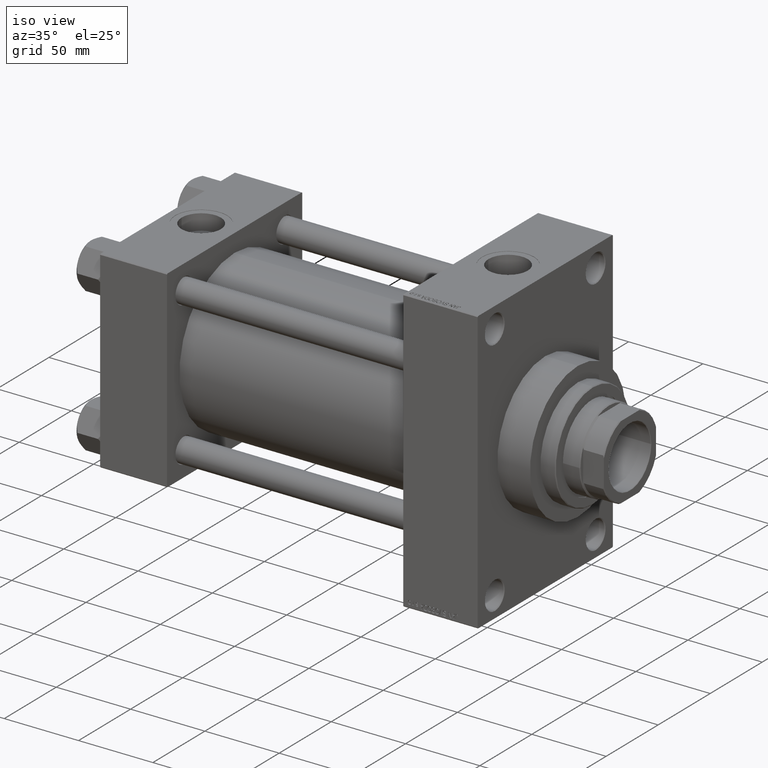
[diagram: clean part render]
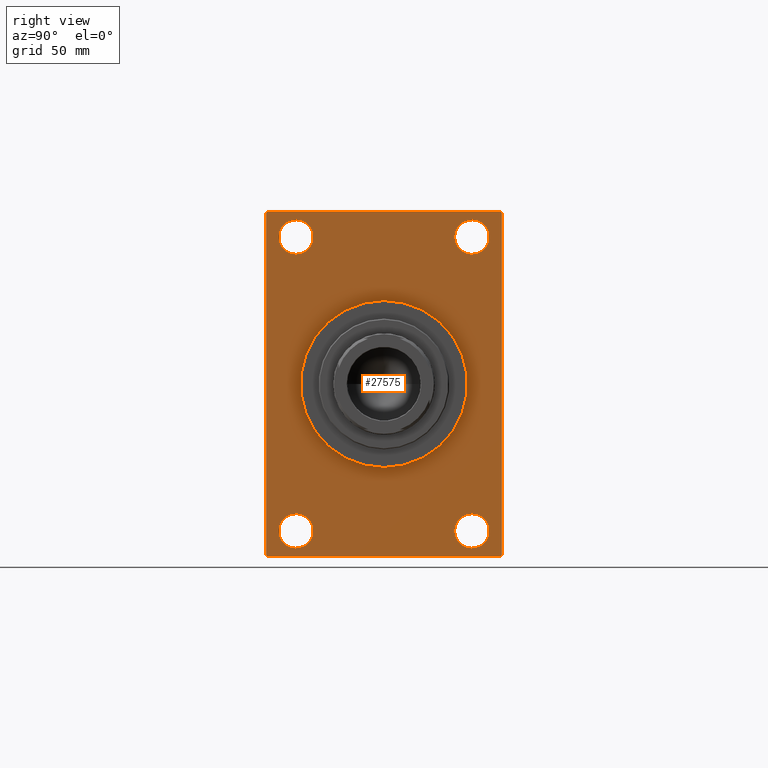
[diagram: tour spotlight — one face highlighted and labeled with its STEP entity id]
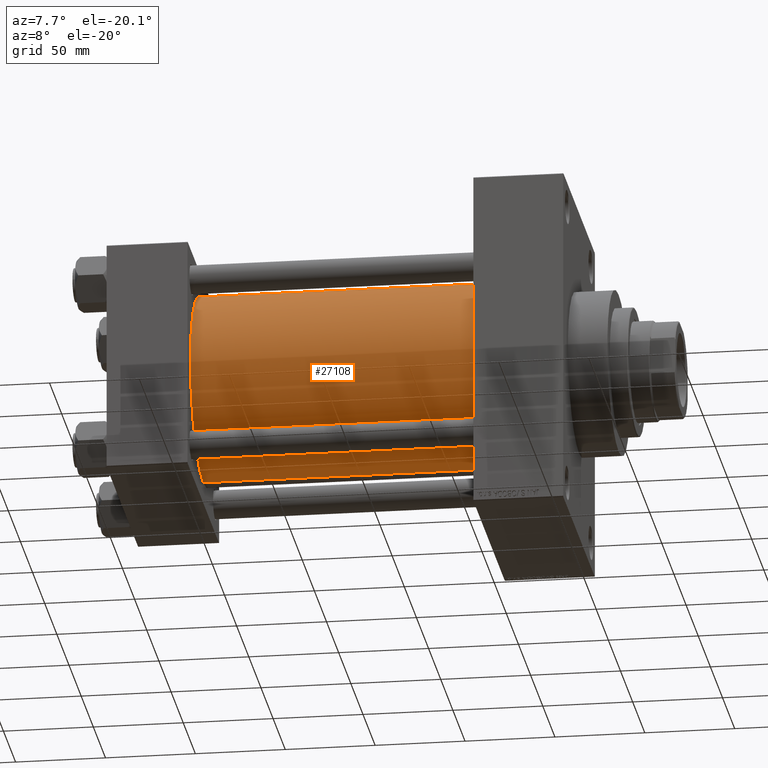
[diagram: tour spotlight — one face highlighted and labeled with its STEP entity id]
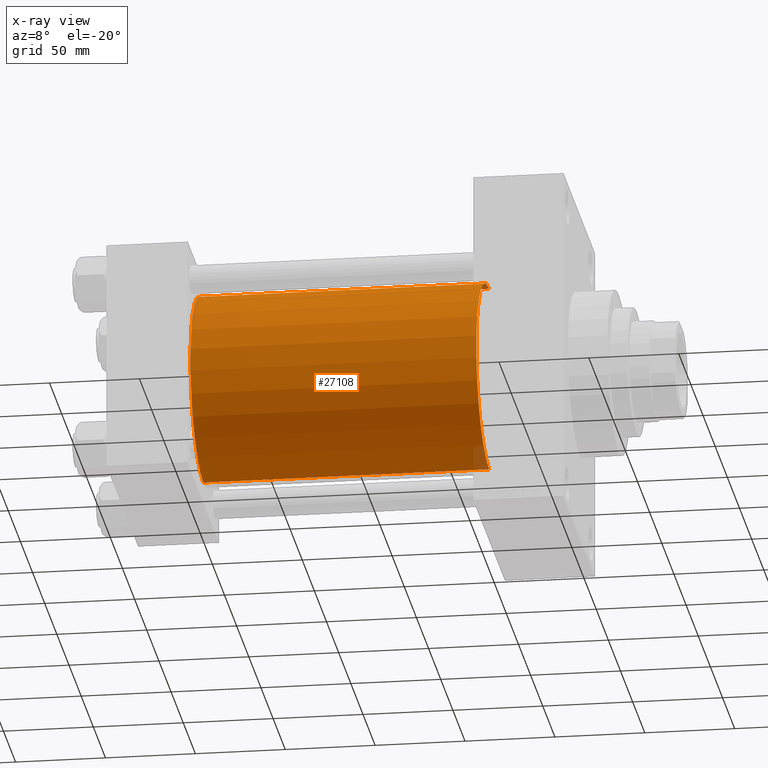
[diagram: x-ray of the same camera — body ghosted, this tour face saturated]
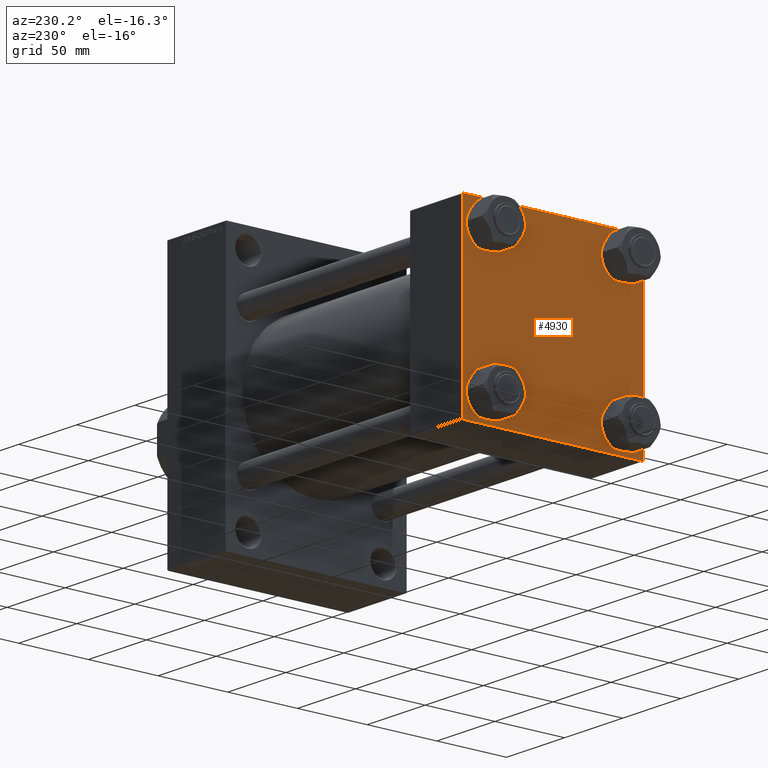
[diagram: tour spotlight — one face highlighted and labeled with its STEP entity id]
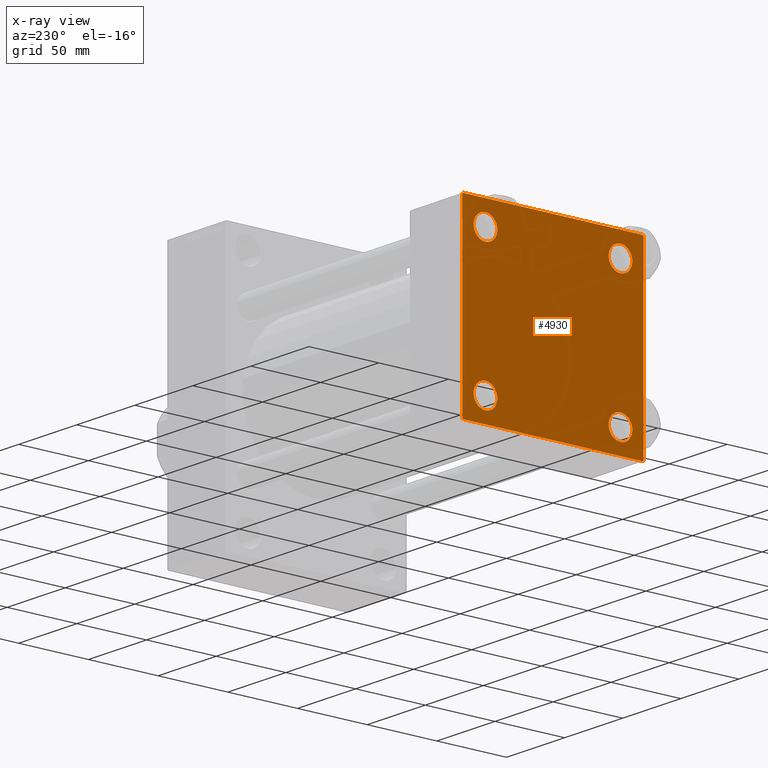
[diagram: x-ray of the same camera — body ghosted, this tour face saturated]
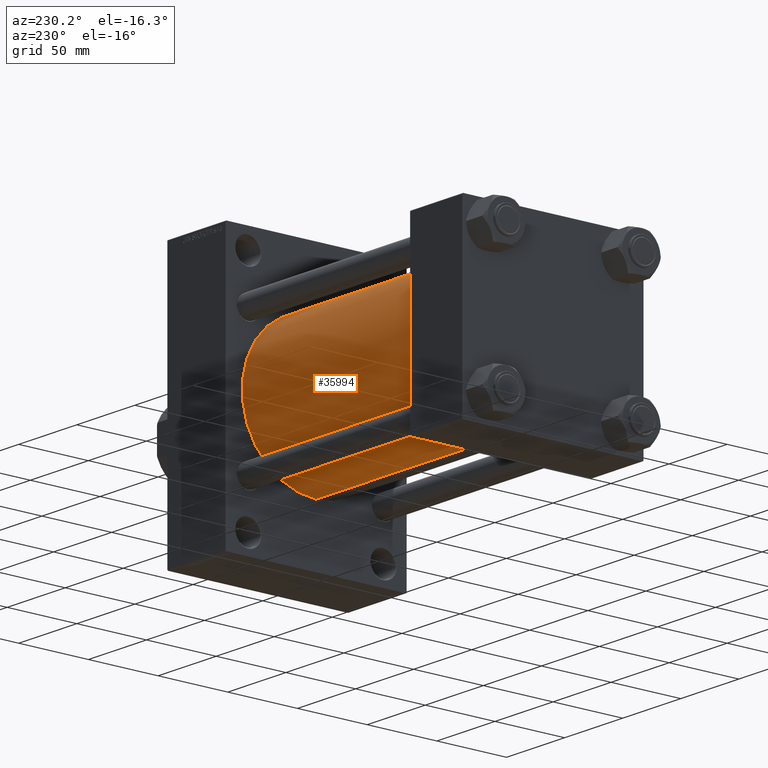
[diagram: tour spotlight — one face highlighted and labeled with its STEP entity id]
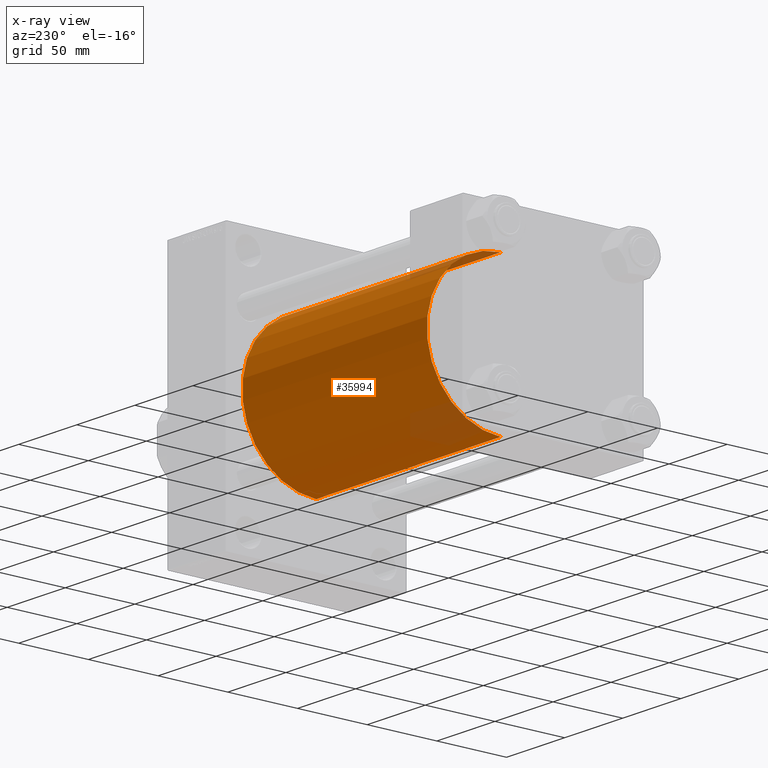
[diagram: x-ray of the same camera — body ghosted, this tour face saturated]
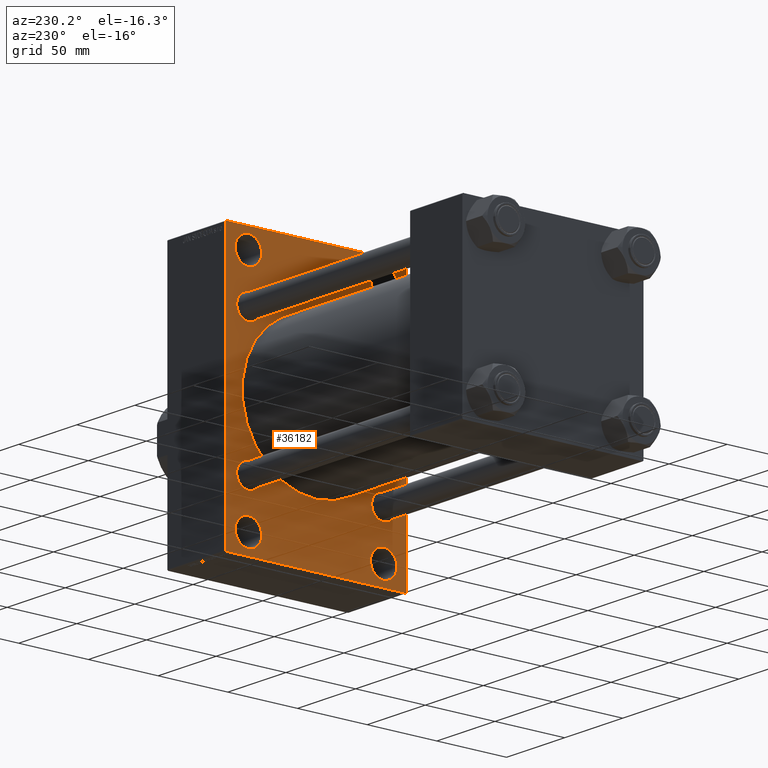
[diagram: tour spotlight — one face highlighted and labeled with its STEP entity id]
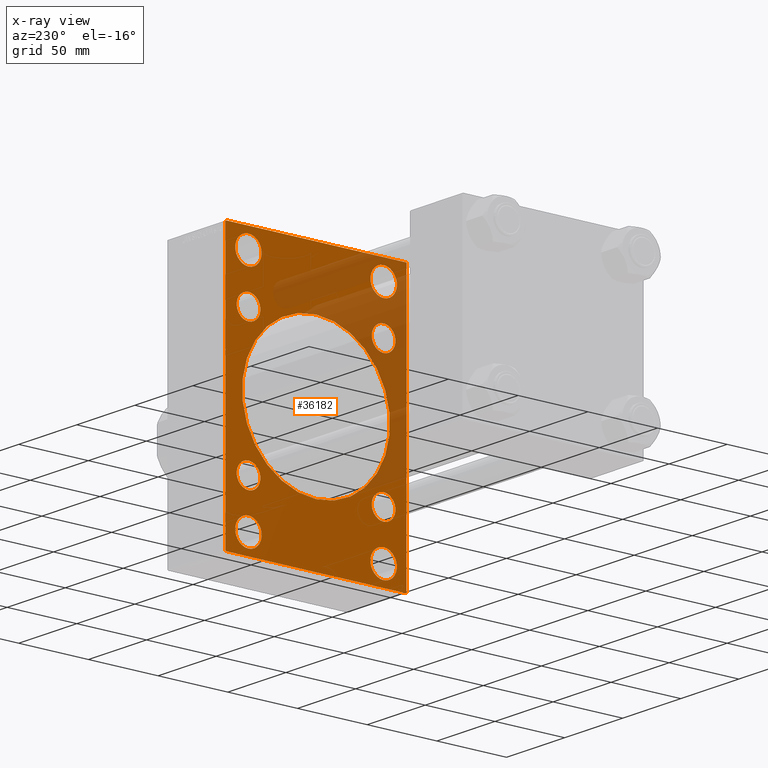
[diagram: x-ray of the same camera — body ghosted, this tour face saturated]
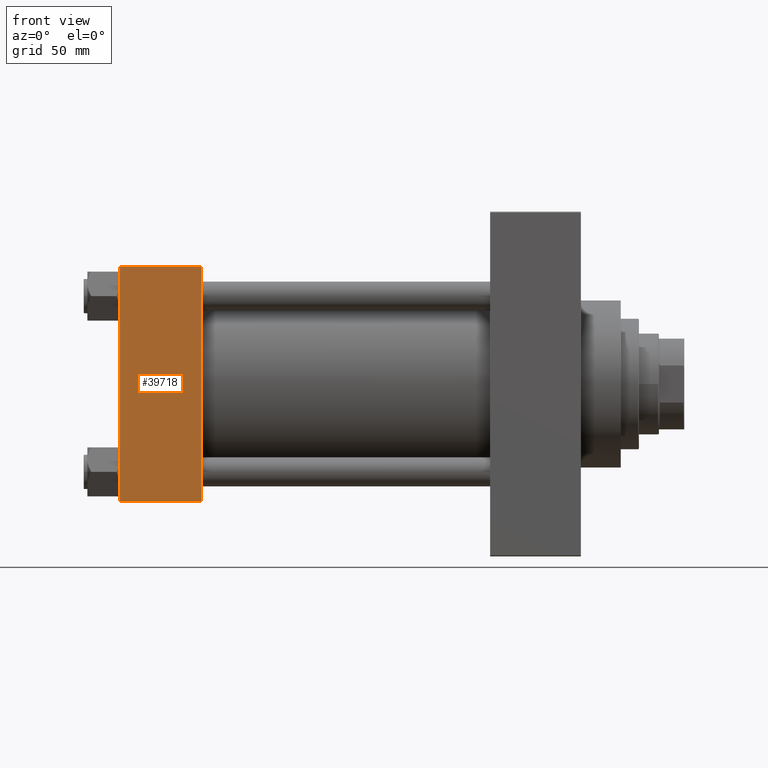
[diagram: tour spotlight — one face highlighted and labeled with its STEP entity id]
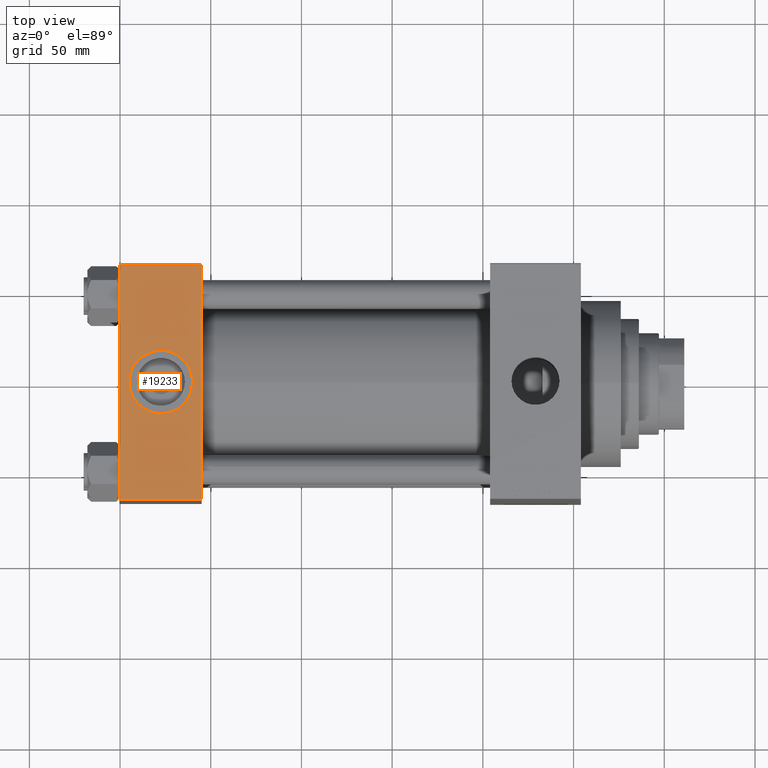
[diagram: tour spotlight — one face highlighted and labeled with its STEP entity id]
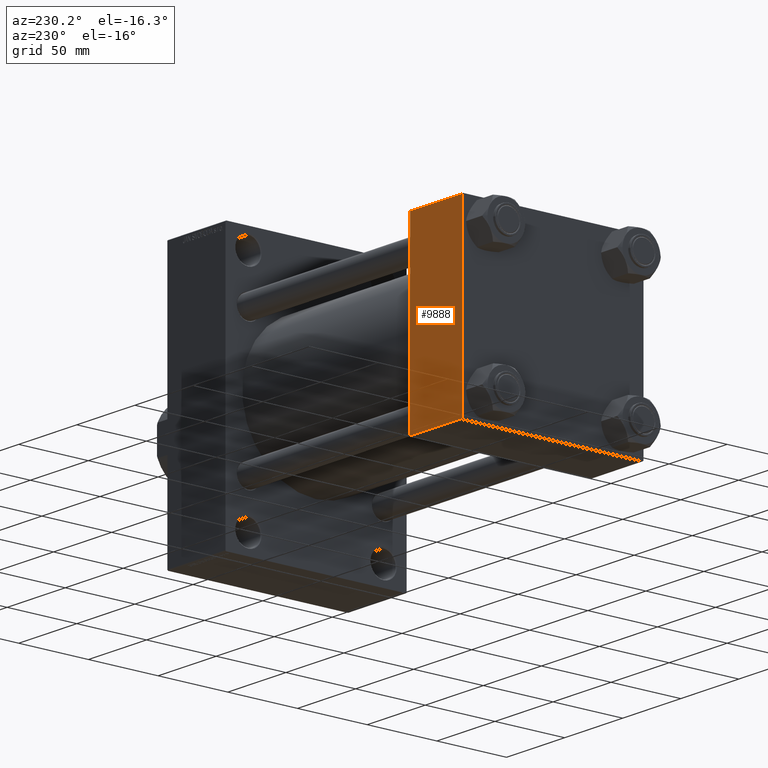
[diagram: tour spotlight — one face highlighted and labeled with its STEP entity id]
A machine part: a face-by-face anatomy tour. The part has 1151 B-rep faces; the first image is the clean iso view, then the 8 largest visible faces are spotlighted one at a time (largest first), each with its STEP entity span.

Face 1 — right view, entity #27575. In plain terms, the highlighted planar face has unit normal (-1, 0, 0).
Definition (entity closure, byte-faithful):
#407 = DIRECTION ( 'NONE',  ( -0.000000000000000000, 0.000000000000000000, 1.000000000000000000 ) ) ;
#501 = AXIS2_PLACEMENT_3D ( 'NONE', #35165, #28647, #2585 ) ;
#584 = VERTEX_POINT ( 'NONE', #8937 ) ;
#1901 = CARTESIAN_POINT ( 'NONE',  ( 254.0000000000000000, -65.00000000000001421, 94.49999999999997158 ) ) ;
#2585 = DIRECTION ( 'NONE',  ( 0.000000000000000000, 0.000000000000000000, 1.000000000000000000 ) ) ;
#2763 = VERTEX_POINT ( 'NONE', #32658 ) ;
#2812 = EDGE_CURVE ( 'NONE', #2763, #3387, #35786, .T. ) ;
#2883 = CARTESIAN_POINT ( 'NONE',  ( 254.0000000000000000, -48.49999999999999289, -81.00000000000001421 ) ) ;
#3011 = AXIS2_PLACEMENT_3D ( 'NONE', #34326, #34558, #26846 ) ;
#3036 = VERTEX_POINT ( 'NONE', #27297 ) ;
#3312 = EDGE_CURVE ( 'NONE', #21486, #2763, #30323, .T. ) ;
#3387 = VERTEX_POINT ( 'NONE', #45530 ) ;
#4260 = FACE_BOUND ( 'NONE', #22928, .T. ) ;
#4405 = DIRECTION ( 'NONE',  ( -1.000000000000000000, 0.000000000000000000, -0.000000000000000000 ) ) ;
#4547 = CIRCLE ( 'NONE', #10712, 9.500000000000063949 ) ;
#4663 = DIRECTION ( 'NONE',  ( 0.000000000000000000, 0.7071067811865474617, -0.7071067811865474617 ) ) ;
#4693 = LINE ( 'NONE', #33899, #6105 ) ;
#4926 = ORIENTED_EDGE ( 'NONE', *, *, #40412, .T. ) ;
#5327 = EDGE_CURVE ( 'NONE', #21486, #29634, #27911, .T. ) ;
#5602 = AXIS2_PLACEMENT_3D ( 'NONE', #19475, #40954, #407 ) ;
#6105 = VECTOR ( 'NONE', #19422, 1000.000000000000000 ) ;
#6768 = VERTEX_POINT ( 'NONE', #31389 ) ;
#7249 = EDGE_CURVE ( 'NONE', #584, #29634, #4693, .T. ) ;
#7800 = DIRECTION ( 'NONE',  ( 0.000000000000000000, 0.000000000000000000, 1.000000000000000000 ) ) ;
#8188 = ORIENTED_EDGE ( 'NONE', *, *, #20645, .F. ) ;
#8294 = CIRCLE ( 'NONE', #28993, 9.500000000000063949 ) ;
#8937 = CARTESIAN_POINT ( 'NONE',  ( 254.0000000000000000, 64.49999999999998579, -95.00000000000001421 ) ) ;
#9797 = AXIS2_PLACEMENT_3D ( 'NONE', #33676, #21452, #44306 ) ;
#10644 = DIRECTION ( 'NONE',  ( 1.000000000000000000, 0.000000000000000000, 0.000000000000000000 ) ) ;
#10712 = AXIS2_PLACEMENT_3D ( 'NONE', #17772, #28869, #21393 ) ;
#10942 = EDGE_CURVE ( 'NONE', #33694, #30131, #4547, .T. ) ;
#11459 = ORIENTED_EDGE ( 'NONE', *, *, #11589, .T. ) ;
#11503 = FACE_OUTER_BOUND ( 'NONE', #22400, .T. ) ;
#11516 = ORIENTED_EDGE ( 'NONE', *, *, #3312, .T. ) ;
#11589 = EDGE_CURVE ( 'NONE', #3387, #45285, #15991, .T. ) ;
#11791 = ORIENTED_EDGE ( 'NONE', *, *, #18075, .F. ) ;
#11987 = CARTESIAN_POINT ( 'NONE',  ( 254.0000000000000000, 64.50000000000002842, 94.99999999999997158 ) ) ;
#12530 = LINE ( 'NONE', #23634, #42628 ) ;
#13484 = CARTESIAN_POINT ( 'NONE',  ( 254.0000000000000000, -65.00000000000001421, -94.50000000000002842 ) ) ;
#13486 = ORIENTED_EDGE ( 'NONE', *, *, #2812, .T. ) ;
#13650 = AXIS2_PLACEMENT_3D ( 'NONE', #42085, #23738, #20128 ) ;
#13681 = VECTOR ( 'NONE', #25634, 1000.000000000000000 ) ;
#13720 = CIRCLE ( 'NONE', #46871, 9.500000000000063949 ) ;
#14059 = DIRECTION ( 'NONE',  ( 0.000000000000000000, 0.000000000000000000, -1.000000000000000000 ) ) ;
#15133 = FACE_BOUND ( 'NONE', #26273, .T. ) ;
#15350 = CIRCLE ( 'NONE', #3011, 9.500000000000008882 ) ;
#15847 = FACE_BOUND ( 'NONE', #38403, .T. ) ;
#15920 = CARTESIAN_POINT ( 'NONE',  ( 254.0000000000000000, 64.99999999999998579, -94.50000000000002842 ) ) ;
#15991 = LINE ( 'NONE', #28029, #27687 ) ;
#16430 = VECTOR ( 'NONE', #4663, 1000.000000000000114 ) ;
#16470 = DIRECTION ( 'NONE',  ( -0.000000000000000000, -0.7071067811865378028, -0.7071067811865573427 ) ) ;
#16493 = VECTOR ( 'NONE', #33077, 1000.000000000000000 ) ;
#16817 = VECTOR ( 'NONE', #31308, 1000.000000000000000 ) ;
#17409 = DIRECTION ( 'NONE',  ( 0.000000000000000000, 0.000000000000000000, -1.000000000000000000 ) ) ;
#17772 = CARTESIAN_POINT ( 'NONE',  ( 254.0000000000000000, 48.50000000000000711, -81.00000000000001421 ) ) ;
#17906 = AXIS2_PLACEMENT_3D ( 'NONE', #32163, #21069, #14059 ) ;
#18075 = EDGE_CURVE ( 'NONE', #23926, #40383, #21781, .T. ) ;
#18348 = CARTESIAN_POINT ( 'NONE',  ( 254.0000000000000000, -65.00000000000001421, 94.99999999999997158 ) ) ;
#18535 = EDGE_LOOP ( 'NONE', ( #21932, #44331 ) ) ;
#18985 = FACE_BOUND ( 'NONE', #26938, .T. ) ;
#19036 = CIRCLE ( 'NONE', #9797, 9.500000000000008882 ) ;
#19422 = DIRECTION ( 'NONE',  ( -0.000000000000000000, 0.7071067811865573427, 0.7071067811865378028 ) ) ;
#19475 = CARTESIAN_POINT ( 'NONE',  ( 254.0000000000000000, 0.000000000000000000, 0.000000000000000000 ) ) ;
#20128 = DIRECTION ( 'NONE',  ( 0.000000000000000000, 0.000000000000000000, 1.000000000000000000 ) ) ;
#20645 = EDGE_CURVE ( 'NONE', #40383, #23926, #47310, .T. ) ;
#20946 = ORIENTED_EDGE ( 'NONE', *, *, #29664, .F. ) ;
#21069 = DIRECTION ( 'NONE',  ( 1.000000000000000000, 0.000000000000000000, 0.000000000000000000 ) ) ;
#21309 = CIRCLE ( 'NONE', #501, 9.500000000000008882 ) ;
#21393 = DIRECTION ( 'NONE',  ( 0.000000000000000000, 0.000000000000000000, 1.000000000000000000 ) ) ;
#21452 = DIRECTION ( 'NONE',  ( -1.000000000000000000, 0.000000000000000000, -0.000000000000000000 ) ) ;
#21486 = VERTEX_POINT ( 'NONE', #30057 ) ;
#21781 = CIRCLE ( 'NONE', #35615, 46.00000000000000000 ) ;
#21853 = DIRECTION ( 'NONE',  ( -1.000000000000000000, 0.000000000000000000, -0.000000000000000000 ) ) ;
#21932 = ORIENTED_EDGE ( 'NONE', *, *, #43576, .T. ) ;
#22400 = EDGE_LOOP ( 'NONE', ( #35688, #27753, #20946, #27475, #34797, #11516, #13486, #11459 ) ) ;
#22928 = EDGE_LOOP ( 'NONE', ( #26480, #4926 ) ) ;
#23004 = LINE ( 'NONE', #37729, #16430 ) ;
#23634 = CARTESIAN_POINT ( 'NONE',  ( 254.0000000000000000, 64.99999999999998579, -95.00000000000001421 ) ) ;
#23738 = DIRECTION ( 'NONE',  ( -1.000000000000000000, 0.000000000000000000, -0.000000000000000000 ) ) ;
#23926 = VERTEX_POINT ( 'NONE', #39873 ) ;
#24381 = CARTESIAN_POINT ( 'NONE',  ( 254.0000000000000000, -48.49999999999999289, -71.49999999999995737 ) ) ;
#25634 = DIRECTION ( 'NONE',  ( 0.000000000000000000, -1.000000000000000000, 0.000000000000000000 ) ) ;
#26091 = EDGE_CURVE ( 'NONE', #46201, #35829, #23004, .T. ) ;
#26167 = CARTESIAN_POINT ( 'NONE',  ( 254.0000000000000000, 48.50000000000000711, -90.50000000000008527 ) ) ;
#26273 = EDGE_LOOP ( 'NONE', ( #8188, #11791 ) ) ;
#26480 = ORIENTED_EDGE ( 'NONE', *, *, #38779, .T. ) ;
#26846 = DIRECTION ( 'NONE',  ( 0.000000000000000000, 0.000000000000000000, 1.000000000000000000 ) ) ;
#26938 = EDGE_LOOP ( 'NONE', ( #39994, #34537 ) ) ;
#27297 = CARTESIAN_POINT ( 'NONE',  ( 254.0000000000000000, -48.49999999999999289, -90.50000000000008527 ) ) ;
#27433 = AXIS2_PLACEMENT_3D ( 'NONE', #28606, #21853, #47193 ) ;
#27475 = ORIENTED_EDGE ( 'NONE', *, *, #7249, .T. ) ;
#27575 = ADVANCED_FACE ( 'NONE', ( #18985, #15847, #29615, #4260, #15133, #11503 ), #41195, .F. ) ;
#27687 = VECTOR ( 'NONE', #16470, 1000.000000000000000 ) ;
#27753 = ORIENTED_EDGE ( 'NONE', *, *, #26091, .T. ) ;
#27911 = LINE ( 'NONE', #35641, #16817 ) ;
#28029 = CARTESIAN_POINT ( 'NONE',  ( 254.0000000000000000, -65.00000000000001421, 94.49999999999997158 ) ) ;
#28407 = VERTEX_POINT ( 'NONE', #24381 ) ;
#28606 = CARTESIAN_POINT ( 'NONE',  ( 254.0000000000000000, -48.50000000000000000, 81.00000000000000000 ) ) ;
#28647 = DIRECTION ( 'NONE',  ( -1.000000000000000000, 0.000000000000000000, -0.000000000000000000 ) ) ;
#28869 = DIRECTION ( 'NONE',  ( -1.000000000000000000, 0.000000000000000000, -0.000000000000000000 ) ) ;
#28993 = AXIS2_PLACEMENT_3D ( 'NONE', #2883, #32333, #47056 ) ;
#29615 = FACE_BOUND ( 'NONE', #18535, .T. ) ;
#29634 = VERTEX_POINT ( 'NONE', #15920 ) ;
#29664 = EDGE_CURVE ( 'NONE', #584, #35829, #12530, .T. ) ;
#29991 = CARTESIAN_POINT ( 'NONE',  ( 254.0000000000000000, -48.49999999999999289, -81.00000000000001421 ) ) ;
#30057 = CARTESIAN_POINT ( 'NONE',  ( 254.0000000000000000, 64.99999999999997158, 94.50000000000002842 ) ) ;
#30131 = VERTEX_POINT ( 'NONE', #26167 ) ;
#30323 = LINE ( 'NONE', #11987, #37564 ) ;
#31308 = DIRECTION ( 'NONE',  ( 0.000000000000000000, 7.304098846218135653E-17, -1.000000000000000000 ) ) ;
#31389 = CARTESIAN_POINT ( 'NONE',  ( 254.0000000000000000, 48.50000000000000711, 71.50000000000000000 ) ) ;
#31746 = EDGE_CURVE ( 'NONE', #45285, #46201, #36697, .T. ) ;
#32163 = CARTESIAN_POINT ( 'NONE',  ( 254.0000000000000000, 0.000000000000000000, 0.000000000000000000 ) ) ;
#32333 = DIRECTION ( 'NONE',  ( -1.000000000000000000, 0.000000000000000000, -0.000000000000000000 ) ) ;
#32656 = VERTEX_POINT ( 'NONE', #34757 ) ;
#32658 = CARTESIAN_POINT ( 'NONE',  ( 254.0000000000000000, 64.50000000000002842, 94.99999999999997158 ) ) ;
#33077 = DIRECTION ( 'NONE',  ( 0.000000000000000000, 0.000000000000000000, -1.000000000000000000 ) ) ;
#33676 = CARTESIAN_POINT ( 'NONE',  ( 254.0000000000000000, 48.50000000000000711, 81.00000000000000000 ) ) ;
#33694 = VERTEX_POINT ( 'NONE', #36676 ) ;
#33899 = CARTESIAN_POINT ( 'NONE',  ( 254.0000000000000000, 64.99999999999998579, -94.50000000000002842 ) ) ;
#34326 = CARTESIAN_POINT ( 'NONE',  ( 254.0000000000000000, -48.50000000000000000, 81.00000000000000000 ) ) ;
#34465 = CIRCLE ( 'NONE', #13650, 9.500000000000063949 ) ;
#34537 = ORIENTED_EDGE ( 'NONE', *, *, #36353, .T. ) ;
#34558 = DIRECTION ( 'NONE',  ( -1.000000000000000000, 0.000000000000000000, -0.000000000000000000 ) ) ;
#34757 = CARTESIAN_POINT ( 'NONE',  ( 254.0000000000000000, -48.50000000000000000, 90.50000000000001421 ) ) ;
#34797 = ORIENTED_EDGE ( 'NONE', *, *, #5327, .F. ) ;
#35165 = CARTESIAN_POINT ( 'NONE',  ( 254.0000000000000000, 48.50000000000000711, 81.00000000000000000 ) ) ;
#35331 = VERTEX_POINT ( 'NONE', #38697 ) ;
#35615 = AXIS2_PLACEMENT_3D ( 'NONE', #35753, #10644, #17409 ) ;
#35641 = CARTESIAN_POINT ( 'NONE',  ( 254.0000000000000000, 64.99999999999997158, 94.99999999999997158 ) ) ;
#35688 = ORIENTED_EDGE ( 'NONE', *, *, #31746, .T. ) ;
#35753 = CARTESIAN_POINT ( 'NONE',  ( 254.0000000000000000, 0.000000000000000000, 0.000000000000000000 ) ) ;
#35786 = LINE ( 'NONE', #47133, #13681 ) ;
#35829 = VERTEX_POINT ( 'NONE', #42250 ) ;
#36353 = EDGE_CURVE ( 'NONE', #32656, #44414, #45943, .T. ) ;
#36676 = CARTESIAN_POINT ( 'NONE',  ( 254.0000000000000000, 48.50000000000000711, -71.49999999999995737 ) ) ;
#36697 = LINE ( 'NONE', #18348, #16493 ) ;
#37564 = VECTOR ( 'NONE', #47746, 1000.000000000000114 ) ;
#37729 = CARTESIAN_POINT ( 'NONE',  ( 254.0000000000000000, -64.50000000000001421, -95.00000000000002842 ) ) ;
#38165 = ORIENTED_EDGE ( 'NONE', *, *, #40200, .T. ) ;
#38363 = DIRECTION ( 'NONE',  ( 0.000000000000000000, -1.000000000000000000, -1.067522139062650425E-16 ) ) ;
#38403 = EDGE_LOOP ( 'NONE', ( #43155, #38165 ) ) ;
#38697 = CARTESIAN_POINT ( 'NONE',  ( 254.0000000000000000, 48.50000000000000711, 90.50000000000001421 ) ) ;
#38779 = EDGE_CURVE ( 'NONE', #6768, #35331, #19036, .T. ) ;
#39873 = CARTESIAN_POINT ( 'NONE',  ( 254.0000000000000000, 5.633375276077824704E-15, -46.00000000000000000 ) ) ;
#39994 = ORIENTED_EDGE ( 'NONE', *, *, #47017, .T. ) ;
#40200 = EDGE_CURVE ( 'NONE', #28407, #3036, #8294, .T. ) ;
#40383 = VERTEX_POINT ( 'NONE', #41475 ) ;
#40412 = EDGE_CURVE ( 'NONE', #35331, #6768, #21309, .T. ) ;
#40954 = DIRECTION ( 'NONE',  ( -1.000000000000000000, 0.000000000000000000, -0.000000000000000000 ) ) ;
#41149 = CARTESIAN_POINT ( 'NONE',  ( 254.0000000000000000, -48.50000000000000000, 71.50000000000000000 ) ) ;
#41195 = PLANE ( 'NONE',  #5602 ) ;
#41475 = CARTESIAN_POINT ( 'NONE',  ( 254.0000000000000000, 0.000000000000000000, 46.00000000000000000 ) ) ;
#42085 = CARTESIAN_POINT ( 'NONE',  ( 254.0000000000000000, 48.50000000000000711, -81.00000000000001421 ) ) ;
#42250 = CARTESIAN_POINT ( 'NONE',  ( 254.0000000000000000, -64.50000000000001421, -95.00000000000002842 ) ) ;
#42628 = VECTOR ( 'NONE', #38363, 1000.000000000000000 ) ;
#43155 = ORIENTED_EDGE ( 'NONE', *, *, #45632, .T. ) ;
#43576 = EDGE_CURVE ( 'NONE', #30131, #33694, #34465, .T. ) ;
#44306 = DIRECTION ( 'NONE',  ( 0.000000000000000000, 0.000000000000000000, 1.000000000000000000 ) ) ;
#44331 = ORIENTED_EDGE ( 'NONE', *, *, #10942, .T. ) ;
#44414 = VERTEX_POINT ( 'NONE', #41149 ) ;
#45285 = VERTEX_POINT ( 'NONE', #1901 ) ;
#45530 = CARTESIAN_POINT ( 'NONE',  ( 254.0000000000000000, -64.50000000000002842, 94.99999999999997158 ) ) ;
#45632 = EDGE_CURVE ( 'NONE', #3036, #28407, #13720, .T. ) ;
#45943 = CIRCLE ( 'NONE', #27433, 9.500000000000008882 ) ;
#46201 = VERTEX_POINT ( 'NONE', #13484 ) ;
#46871 = AXIS2_PLACEMENT_3D ( 'NONE', #29991, #4405, #7800 ) ;
#47017 = EDGE_CURVE ( 'NONE', #44414, #32656, #15350, .T. ) ;
#47056 = DIRECTION ( 'NONE',  ( 0.000000000000000000, 0.000000000000000000, 1.000000000000000000 ) ) ;
#47133 = CARTESIAN_POINT ( 'NONE',  ( 254.0000000000000000, 64.99999999999997158, 94.99999999999997158 ) ) ;
#47193 = DIRECTION ( 'NONE',  ( 0.000000000000000000, 0.000000000000000000, 1.000000000000000000 ) ) ;
#47310 = CIRCLE ( 'NONE', #17906, 46.00000000000000000 ) ;
#47746 = DIRECTION ( 'NONE',  ( 0.000000000000000000, -0.7071067811865474617, 0.7071067811865474617 ) ) ;

Face 2 — auxiliary view, entity #27108. An x-ray twin of the same camera follows (body ghosted, this face saturated) — the face is partly hidden behind the body. In plain terms, the highlighted cylindrical surface (partial cylindrical patch) has radius 53 mm, axis along (-1, -0, -0).
Definition (entity closure, byte-faithful):
#1862 = LINE ( 'NONE', #31077, #23324 ) ;
#4198 = DIRECTION ( 'NONE',  ( -1.000000000000000000, -0.000000000000000000, -0.000000000000000000 ) ) ;
#4753 = VERTEX_POINT ( 'NONE', #19915 ) ;
#5018 = DIRECTION ( 'NONE',  ( -1.000000000000000000, -0.000000000000000000, -0.000000000000000000 ) ) ;
#5227 = DIRECTION ( 'NONE',  ( 1.000000000000000000, -0.000000000000000000, 0.000000000000000000 ) ) ;
#5826 = DIRECTION ( 'NONE',  ( 0.000000000000000000, 0.000000000000000000, -1.000000000000000000 ) ) ;
#7328 = ORIENTED_EDGE ( 'NONE', *, *, #22123, .T. ) ;
#7831 = CYLINDRICAL_SURFACE ( 'NONE', #29552, 53.00000000000000711 ) ;
#9545 = CARTESIAN_POINT ( 'NONE',  ( 44.99999999999998579, -2.602085213965210642E-15, 0.000000000000000000 ) ) ;
#10946 = VECTOR ( 'NONE', #43482, 1000.000000000000000 ) ;
#11681 = EDGE_LOOP ( 'NONE', ( #28962, #46185, #7328, #17751 ) ) ;
#12222 = DIRECTION ( 'NONE',  ( 0.000000000000000000, 0.000000000000000000, 1.000000000000000000 ) ) ;
#16349 = CARTESIAN_POINT ( 'NONE',  ( 44.99999999999998579, -2.602085213965210642E-15, 53.00000000000000711 ) ) ;
#17251 = AXIS2_PLACEMENT_3D ( 'NONE', #9545, #5227, #12222 ) ;
#17751 = ORIENTED_EDGE ( 'NONE', *, *, #30864, .T. ) ;
#18434 = EDGE_CURVE ( 'NONE', #30208, #4753, #36497, .T. ) ;
#19772 = VERTEX_POINT ( 'NONE', #44387 ) ;
#19915 = CARTESIAN_POINT ( 'NONE',  ( 44.99999999999998579, 3.888542821515760888E-15, -53.00000000000000711 ) ) ;
#22123 = EDGE_CURVE ( 'NONE', #19772, #41340, #1862, .T. ) ;
#23324 = VECTOR ( 'NONE', #5018, 1000.000000000000000 ) ;
#23451 = AXIS2_PLACEMENT_3D ( 'NONE', #32124, #38896, #5826 ) ;
#27108 = ADVANCED_FACE ( 'NONE', ( #40889 ), #7831, .T. ) ;
#28962 = ORIENTED_EDGE ( 'NONE', *, *, #18434, .F. ) ;
#29552 = AXIS2_PLACEMENT_3D ( 'NONE', #37274, #4198, #38458 ) ;
#30208 = VERTEX_POINT ( 'NONE', #33415 ) ;
#30864 = EDGE_CURVE ( 'NONE', #41340, #4753, #31134, .T. ) ;
#31077 = CARTESIAN_POINT ( 'NONE',  ( 204.0000000000000284, -2.602085213965210642E-15, 53.00000000000000711 ) ) ;
#31134 = CIRCLE ( 'NONE', #17251, 53.00000000000000711 ) ;
#32124 = CARTESIAN_POINT ( 'NONE',  ( 204.0000000000000284, -2.602085213965210642E-15, 0.000000000000000000 ) ) ;
#32302 = EDGE_CURVE ( 'NONE', #19772, #30208, #39640, .T. ) ;
#33415 = CARTESIAN_POINT ( 'NONE',  ( 204.0000000000000284, 3.888542821515760888E-15, -53.00000000000000711 ) ) ;
#36497 = LINE ( 'NONE', #47595, #10946 ) ;
#37274 = CARTESIAN_POINT ( 'NONE',  ( 204.0000000000000284, -2.602085213965210642E-15, 0.000000000000000000 ) ) ;
#38458 = DIRECTION ( 'NONE',  ( 0.000000000000000000, 0.000000000000000000, 1.000000000000000000 ) ) ;
#38896 = DIRECTION ( 'NONE',  ( 1.000000000000000000, 0.000000000000000000, 0.000000000000000000 ) ) ;
#39640 = CIRCLE ( 'NONE', #23451, 53.00000000000000711 ) ;
#40889 = FACE_OUTER_BOUND ( 'NONE', #11681, .T. ) ;
#41340 = VERTEX_POINT ( 'NONE', #16349 ) ;
#43482 = DIRECTION ( 'NONE',  ( -1.000000000000000000, -0.000000000000000000, -0.000000000000000000 ) ) ;
#44387 = CARTESIAN_POINT ( 'NONE',  ( 204.0000000000000284, -2.602085213965210642E-15, 53.00000000000000711 ) ) ;
#46185 = ORIENTED_EDGE ( 'NONE', *, *, #32302, .F. ) ;
#47595 = CARTESIAN_POINT ( 'NONE',  ( 204.0000000000000284, 3.888542821515760888E-15, -53.00000000000000711 ) ) ;

Face 3 — auxiliary view, entity #4930. An x-ray twin of the same camera follows (body ghosted, this face saturated) — the face is partly hidden behind the body. In plain terms, the highlighted planar face has unit normal (-1, 0, 0).
Definition (entity closure, byte-faithful):
#244 = ORIENTED_EDGE ( 'NONE', *, *, #26137, .T. ) ;
#344 = DIRECTION ( 'NONE',  ( -0.000000000000000000, -0.7071067811865474617, -0.7071067811865474617 ) ) ;
#796 = CARTESIAN_POINT ( 'NONE',  ( 0.000000000000000000, -48.44999999999999574, 48.45000000000003126 ) ) ;
#1748 = LINE ( 'NONE', #12376, #47269 ) ;
#1876 = VERTEX_POINT ( 'NONE', #35054 ) ;
#2430 = VECTOR ( 'NONE', #39959, 1000.000000000000114 ) ;
#2533 = AXIS2_PLACEMENT_3D ( 'NONE', #7294, #28773, #29249 ) ;
#2947 = CARTESIAN_POINT ( 'NONE',  ( 0.000000000000000000, -65.00000000000000000, 64.50000000000000000 ) ) ;
#3533 = ORIENTED_EDGE ( 'NONE', *, *, #16611, .T. ) ;
#3598 = CIRCLE ( 'NONE', #22859, 8.500000000000007105 ) ;
#4119 = EDGE_CURVE ( 'NONE', #8456, #39926, #19891, .T. ) ;
#4268 = EDGE_LOOP ( 'NONE', ( #24314, #10607 ) ) ;
#4640 = DIRECTION ( 'NONE',  ( 1.000000000000000000, -0.000000000000000000, 0.000000000000000000 ) ) ;
#4760 = VERTEX_POINT ( 'NONE', #34625 ) ;
#4930 = ADVANCED_FACE ( 'NONE', ( #41764, #11846, #30653, #41292, #42005 ), #8232, .T. ) ;
#5416 = AXIS2_PLACEMENT_3D ( 'NONE', #796, #41345, #30469 ) ;
#5644 = EDGE_CURVE ( 'NONE', #4760, #17527, #46931, .T. ) ;
#5776 = DIRECTION ( 'NONE',  ( 1.000000000000000000, -0.000000000000000000, 0.000000000000000000 ) ) ;
#6292 = EDGE_CURVE ( 'NONE', #18392, #1876, #36906, .T. ) ;
#6567 = CARTESIAN_POINT ( 'NONE',  ( 0.000000000000000000, 65.00000000000000000, -64.49999999999995737 ) ) ;
#6827 = VERTEX_POINT ( 'NONE', #42725 ) ;
#7080 = CARTESIAN_POINT ( 'NONE',  ( 0.000000000000000000, -48.44999999999999574, -56.95000000000003837 ) ) ;
#7291 = DIRECTION ( 'NONE',  ( 0.000000000000000000, -1.000000000000000000, -1.067522139062650425E-16 ) ) ;
#7294 = CARTESIAN_POINT ( 'NONE',  ( 0.000000000000000000, -48.44999999999999574, 48.45000000000003126 ) ) ;
#8232 = PLANE ( 'NONE',  #36124 ) ;
#8456 = VERTEX_POINT ( 'NONE', #16805 ) ;
#8568 = CARTESIAN_POINT ( 'NONE',  ( 0.000000000000000000, -65.00000000000000000, -64.49999999999991473 ) ) ;
#8703 = DIRECTION ( 'NONE',  ( -0.000000000000000000, 0.000000000000000000, 1.000000000000000000 ) ) ;
#8963 = DIRECTION ( 'NONE',  ( 0.000000000000000000, 0.000000000000000000, 1.000000000000000000 ) ) ;
#9058 = DIRECTION ( 'NONE',  ( 0.000000000000000000, 0.000000000000000000, 1.000000000000000000 ) ) ;
#9264 = DIRECTION ( 'NONE',  ( 0.000000000000000000, 0.000000000000000000, 1.000000000000000000 ) ) ;
#9356 = VERTEX_POINT ( 'NONE', #13184 ) ;
#9565 = ORIENTED_EDGE ( 'NONE', *, *, #19931, .T. ) ;
#10128 = ORIENTED_EDGE ( 'NONE', *, *, #19074, .F. ) ;
#10607 = ORIENTED_EDGE ( 'NONE', *, *, #23023, .T. ) ;
#11577 = CARTESIAN_POINT ( 'NONE',  ( 0.000000000000000000, -65.00000000000000000, 65.00000000000000000 ) ) ;
#11759 = EDGE_CURVE ( 'NONE', #6827, #28956, #21542, .T. ) ;
#11846 = FACE_BOUND ( 'NONE', #44176, .T. ) ;
#12376 = CARTESIAN_POINT ( 'NONE',  ( 0.000000000000000000, 65.00000000000000000, 65.00000000000001421 ) ) ;
#12391 = EDGE_CURVE ( 'NONE', #44859, #9356, #30075, .T. ) ;
#13184 = CARTESIAN_POINT ( 'NONE',  ( 0.000000000000000000, -48.44999999999999574, 39.95000000000001705 ) ) ;
#14278 = CARTESIAN_POINT ( 'NONE',  ( 0.000000000000000000, 65.00000000000000000, -64.99999999999998579 ) ) ;
#14429 = ORIENTED_EDGE ( 'NONE', *, *, #6292, .T. ) ;
#14752 = DIRECTION ( 'NONE',  ( 1.000000000000000000, -0.000000000000000000, 0.000000000000000000 ) ) ;
#14779 = EDGE_LOOP ( 'NONE', ( #42373, #35176 ) ) ;
#15067 = CARTESIAN_POINT ( 'NONE',  ( 0.000000000000000000, 64.74999999999997158, -64.74999999999997158 ) ) ;
#16163 = AXIS2_PLACEMENT_3D ( 'NONE', #36719, #14752, #18609 ) ;
#16514 = DIRECTION ( 'NONE',  ( 1.000000000000000000, -0.000000000000000000, 0.000000000000000000 ) ) ;
#16611 = EDGE_CURVE ( 'NONE', #25925, #25275, #44048, .T. ) ;
#16760 = EDGE_CURVE ( 'NONE', #1876, #18392, #40995, .T. ) ;
#16805 = CARTESIAN_POINT ( 'NONE',  ( 0.000000000000000000, 48.45000000000000995, -39.95000000000000284 ) ) ;
#17080 = CARTESIAN_POINT ( 'NONE',  ( 0.000000000000000000, -48.44999999999999574, -48.45000000000003126 ) ) ;
#17527 = VERTEX_POINT ( 'NONE', #8568 ) ;
#17678 = VERTEX_POINT ( 'NONE', #35808 ) ;
#18355 = EDGE_CURVE ( 'NONE', #43401, #4760, #36960, .T. ) ;
#18392 = VERTEX_POINT ( 'NONE', #28768 ) ;
#18485 = VERTEX_POINT ( 'NONE', #6567 ) ;
#18609 = DIRECTION ( 'NONE',  ( 0.000000000000000000, 0.000000000000000000, 1.000000000000000000 ) ) ;
#19074 = EDGE_CURVE ( 'NONE', #25925, #17678, #37800, .T. ) ;
#19604 = CARTESIAN_POINT ( 'NONE',  ( 0.000000000000000000, 48.45000000000000995, -48.45000000000001705 ) ) ;
#19891 = CIRCLE ( 'NONE', #34523, 8.500000000000007105 ) ;
#19931 = EDGE_CURVE ( 'NONE', #28956, #6827, #41104, .T. ) ;
#20422 = EDGE_LOOP ( 'NONE', ( #244, #36288, #24981, #44088, #46247, #39823, #10128, #3533 ) ) ;
#21111 = VECTOR ( 'NONE', #29212, 1000.000000000000000 ) ;
#21542 = CIRCLE ( 'NONE', #16163, 8.500000000000007105 ) ;
#21809 = CIRCLE ( 'NONE', #2533, 8.500000000000007105 ) ;
#22716 = CARTESIAN_POINT ( 'NONE',  ( 0.000000000000000000, 0.000000000000000000, 0.000000000000000000 ) ) ;
#22783 = LINE ( 'NONE', #15067, #45879 ) ;
#22859 = AXIS2_PLACEMENT_3D ( 'NONE', #19604, #4640, #8963 ) ;
#22976 = VERTEX_POINT ( 'NONE', #2947 ) ;
#23023 = EDGE_CURVE ( 'NONE', #9356, #44859, #21809, .T. ) ;
#23656 = DIRECTION ( 'NONE',  ( -1.000000000000000000, 0.000000000000000000, -0.000000000000000000 ) ) ;
#24314 = ORIENTED_EDGE ( 'NONE', *, *, #12391, .T. ) ;
#24734 = CARTESIAN_POINT ( 'NONE',  ( 0.000000000000000000, 64.49999999999997158, -64.99999999999998579 ) ) ;
#24981 = ORIENTED_EDGE ( 'NONE', *, *, #18355, .T. ) ;
#25191 = DIRECTION ( 'NONE',  ( 0.000000000000000000, -0.7071067811865279218, 0.7071067811865671127 ) ) ;
#25275 = VERTEX_POINT ( 'NONE', #37905 ) ;
#25469 = CARTESIAN_POINT ( 'NONE',  ( 0.000000000000000000, 64.74999999999998579, 64.74999999999998579 ) ) ;
#25925 = VERTEX_POINT ( 'NONE', #40631 ) ;
#26137 = EDGE_CURVE ( 'NONE', #25275, #18485, #1748, .T. ) ;
#26347 = AXIS2_PLACEMENT_3D ( 'NONE', #38242, #16514, #9264 ) ;
#27176 = VECTOR ( 'NONE', #36846, 1000.000000000000000 ) ;
#28768 = CARTESIAN_POINT ( 'NONE',  ( 0.000000000000000000, 48.45000000000000995, 39.95000000000000284 ) ) ;
#28773 = DIRECTION ( 'NONE',  ( 1.000000000000000000, -0.000000000000000000, 0.000000000000000000 ) ) ;
#28956 = VERTEX_POINT ( 'NONE', #7080 ) ;
#29212 = DIRECTION ( 'NONE',  ( 0.000000000000000000, 0.000000000000000000, -1.000000000000000000 ) ) ;
#29249 = DIRECTION ( 'NONE',  ( 0.000000000000000000, 0.000000000000000000, 1.000000000000000000 ) ) ;
#29605 = CARTESIAN_POINT ( 'NONE',  ( 0.000000000000000000, 65.00000000000000000, 65.00000000000001421 ) ) ;
#30075 = CIRCLE ( 'NONE', #5416, 8.500000000000007105 ) ;
#30469 = DIRECTION ( 'NONE',  ( 0.000000000000000000, 0.000000000000000000, 1.000000000000000000 ) ) ;
#30653 = FACE_BOUND ( 'NONE', #14779, .T. ) ;
#31091 = DIRECTION ( 'NONE',  ( 0.000000000000000000, 0.000000000000000000, 1.000000000000000000 ) ) ;
#31490 = VECTOR ( 'NONE', #25191, 1000.000000000000000 ) ;
#31696 = EDGE_CURVE ( 'NONE', #22976, #17527, #33309, .T. ) ;
#31797 = VECTOR ( 'NONE', #7291, 1000.000000000000000 ) ;
#33309 = LINE ( 'NONE', #11577, #21111 ) ;
#33576 = CARTESIAN_POINT ( 'NONE',  ( 0.000000000000000000, 48.45000000000000995, -56.95000000000002416 ) ) ;
#34458 = EDGE_CURVE ( 'NONE', #18485, #43401, #22783, .T. ) ;
#34523 = AXIS2_PLACEMENT_3D ( 'NONE', #38849, #5776, #35207 ) ;
#34625 = CARTESIAN_POINT ( 'NONE',  ( 0.000000000000000000, -64.49999999999994316, -65.00000000000000000 ) ) ;
#34875 = CARTESIAN_POINT ( 'NONE',  ( 0.000000000000000000, 48.45000000000000995, 48.45000000000001705 ) ) ;
#35054 = CARTESIAN_POINT ( 'NONE',  ( 0.000000000000000000, 48.45000000000000995, 56.95000000000002416 ) ) ;
#35176 = ORIENTED_EDGE ( 'NONE', *, *, #37865, .T. ) ;
#35207 = DIRECTION ( 'NONE',  ( 0.000000000000000000, 0.000000000000000000, 1.000000000000000000 ) ) ;
#35686 = AXIS2_PLACEMENT_3D ( 'NONE', #17080, #45817, #31091 ) ;
#35808 = CARTESIAN_POINT ( 'NONE',  ( 0.000000000000000000, -64.49999999999997158, 65.00000000000000000 ) ) ;
#35835 = DIRECTION ( 'NONE',  ( 1.000000000000000000, -0.000000000000000000, 0.000000000000000000 ) ) ;
#36124 = AXIS2_PLACEMENT_3D ( 'NONE', #22716, #23656, #8703 ) ;
#36157 = AXIS2_PLACEMENT_3D ( 'NONE', #34875, #35835, #9058 ) ;
#36288 = ORIENTED_EDGE ( 'NONE', *, *, #34458, .T. ) ;
#36420 = ORIENTED_EDGE ( 'NONE', *, *, #11759, .T. ) ;
#36719 = CARTESIAN_POINT ( 'NONE',  ( 0.000000000000000000, -48.44999999999999574, -48.45000000000003126 ) ) ;
#36846 = DIRECTION ( 'NONE',  ( 0.000000000000000000, -1.000000000000000000, -1.067522139062650425E-16 ) ) ;
#36906 = CIRCLE ( 'NONE', #36157, 8.500000000000007105 ) ;
#36960 = LINE ( 'NONE', #14278, #31797 ) ;
#37800 = LINE ( 'NONE', #29605, #27176 ) ;
#37865 = EDGE_CURVE ( 'NONE', #39926, #8456, #3598, .T. ) ;
#37905 = CARTESIAN_POINT ( 'NONE',  ( 0.000000000000000000, 65.00000000000000000, 64.49999999999998579 ) ) ;
#38242 = CARTESIAN_POINT ( 'NONE',  ( 0.000000000000000000, 48.45000000000000995, 48.45000000000001705 ) ) ;
#38849 = CARTESIAN_POINT ( 'NONE',  ( 0.000000000000000000, 48.45000000000000995, -48.45000000000001705 ) ) ;
#39451 = CARTESIAN_POINT ( 'NONE',  ( 0.000000000000000000, -64.75000000000176215, -64.74999999999816680 ) ) ;
#39562 = DIRECTION ( 'NONE',  ( -0.000000000000000000, 0.7071067811865672237, 0.7071067811865279218 ) ) ;
#39602 = CARTESIAN_POINT ( 'NONE',  ( 0.000000000000000000, -48.44999999999999574, 56.95000000000003837 ) ) ;
#39823 = ORIENTED_EDGE ( 'NONE', *, *, #47499, .T. ) ;
#39926 = VERTEX_POINT ( 'NONE', #33576 ) ;
#39959 = DIRECTION ( 'NONE',  ( 0.000000000000000000, 0.7071067811865474617, -0.7071067811865474617 ) ) ;
#40273 = LINE ( 'NONE', #47524, #42318 ) ;
#40631 = CARTESIAN_POINT ( 'NONE',  ( 0.000000000000000000, 64.49999999999997158, 65.00000000000001421 ) ) ;
#40995 = CIRCLE ( 'NONE', #26347, 8.500000000000007105 ) ;
#41104 = CIRCLE ( 'NONE', #35686, 8.500000000000007105 ) ;
#41292 = FACE_BOUND ( 'NONE', #42306, .T. ) ;
#41345 = DIRECTION ( 'NONE',  ( 1.000000000000000000, -0.000000000000000000, 0.000000000000000000 ) ) ;
#41764 = FACE_BOUND ( 'NONE', #4268, .T. ) ;
#42005 = FACE_OUTER_BOUND ( 'NONE', #20422, .T. ) ;
#42306 = EDGE_LOOP ( 'NONE', ( #45372, #14429 ) ) ;
#42318 = VECTOR ( 'NONE', #39562, 1000.000000000000000 ) ;
#42373 = ORIENTED_EDGE ( 'NONE', *, *, #4119, .T. ) ;
#42725 = CARTESIAN_POINT ( 'NONE',  ( 0.000000000000000000, -48.44999999999999574, -39.95000000000001705 ) ) ;
#43401 = VERTEX_POINT ( 'NONE', #24734 ) ;
#44048 = LINE ( 'NONE', #25469, #2430 ) ;
#44088 = ORIENTED_EDGE ( 'NONE', *, *, #5644, .T. ) ;
#44176 = EDGE_LOOP ( 'NONE', ( #36420, #9565 ) ) ;
#44859 = VERTEX_POINT ( 'NONE', #39602 ) ;
#45372 = ORIENTED_EDGE ( 'NONE', *, *, #16760, .T. ) ;
#45817 = DIRECTION ( 'NONE',  ( 1.000000000000000000, -0.000000000000000000, 0.000000000000000000 ) ) ;
#45879 = VECTOR ( 'NONE', #344, 1000.000000000000114 ) ;
#45916 = DIRECTION ( 'NONE',  ( 0.000000000000000000, 0.000000000000000000, -1.000000000000000000 ) ) ;
#46247 = ORIENTED_EDGE ( 'NONE', *, *, #31696, .F. ) ;
#46931 = LINE ( 'NONE', #39451, #31490 ) ;
#47269 = VECTOR ( 'NONE', #45916, 1000.000000000000000 ) ;
#47499 = EDGE_CURVE ( 'NONE', #22976, #17678, #40273, .T. ) ;
#47524 = CARTESIAN_POINT ( 'NONE',  ( -0.000000000000000000, -64.74999999999819522, 64.75000000000179057 ) ) ;

Face 4 — auxiliary view, entity #35994. An x-ray twin of the same camera follows (body ghosted, this face saturated) — the face is partly hidden behind the body. In plain terms, the highlighted cylindrical surface (partial cylindrical patch) has radius 53 mm, axis along (-1, -0, -0).
Definition (entity closure, byte-faithful):
#921 = DIRECTION ( 'NONE',  ( 1.000000000000000000, -0.000000000000000000, 0.000000000000000000 ) ) ;
#1862 = LINE ( 'NONE', #31077, #23324 ) ;
#4753 = VERTEX_POINT ( 'NONE', #19915 ) ;
#5018 = DIRECTION ( 'NONE',  ( -1.000000000000000000, -0.000000000000000000, -0.000000000000000000 ) ) ;
#6951 = CYLINDRICAL_SURFACE ( 'NONE', #18967, 53.00000000000000711 ) ;
#7997 = CIRCLE ( 'NONE', #34947, 53.00000000000000711 ) ;
#8187 = CIRCLE ( 'NONE', #35147, 53.00000000000000711 ) ;
#10946 = VECTOR ( 'NONE', #43482, 1000.000000000000000 ) ;
#11442 = DIRECTION ( 'NONE',  ( 1.000000000000000000, 0.000000000000000000, 0.000000000000000000 ) ) ;
#14832 = CARTESIAN_POINT ( 'NONE',  ( 204.0000000000000284, -2.602085213965210642E-15, 0.000000000000000000 ) ) ;
#16349 = CARTESIAN_POINT ( 'NONE',  ( 44.99999999999998579, -2.602085213965210642E-15, 53.00000000000000711 ) ) ;
#17981 = DIRECTION ( 'NONE',  ( 0.000000000000000000, 0.000000000000000000, -1.000000000000000000 ) ) ;
#18045 = FACE_OUTER_BOUND ( 'NONE', #36523, .T. ) ;
#18434 = EDGE_CURVE ( 'NONE', #30208, #4753, #36497, .T. ) ;
#18967 = AXIS2_PLACEMENT_3D ( 'NONE', #29143, #35668, #36156 ) ;
#19590 = ORIENTED_EDGE ( 'NONE', *, *, #22123, .F. ) ;
#19772 = VERTEX_POINT ( 'NONE', #44387 ) ;
#19915 = CARTESIAN_POINT ( 'NONE',  ( 44.99999999999998579, 3.888542821515760888E-15, -53.00000000000000711 ) ) ;
#19991 = DIRECTION ( 'NONE',  ( 0.000000000000000000, 0.000000000000000000, 1.000000000000000000 ) ) ;
#22123 = EDGE_CURVE ( 'NONE', #19772, #41340, #1862, .T. ) ;
#23324 = VECTOR ( 'NONE', #5018, 1000.000000000000000 ) ;
#29143 = CARTESIAN_POINT ( 'NONE',  ( 204.0000000000000284, -2.602085213965210642E-15, 0.000000000000000000 ) ) ;
#29490 = ORIENTED_EDGE ( 'NONE', *, *, #30210, .F. ) ;
#30208 = VERTEX_POINT ( 'NONE', #33415 ) ;
#30210 = EDGE_CURVE ( 'NONE', #30208, #19772, #7997, .T. ) ;
#31077 = CARTESIAN_POINT ( 'NONE',  ( 204.0000000000000284, -2.602085213965210642E-15, 53.00000000000000711 ) ) ;
#33415 = CARTESIAN_POINT ( 'NONE',  ( 204.0000000000000284, 3.888542821515760888E-15, -53.00000000000000711 ) ) ;
#33988 = CARTESIAN_POINT ( 'NONE',  ( 44.99999999999998579, -2.602085213965210642E-15, 0.000000000000000000 ) ) ;
#34947 = AXIS2_PLACEMENT_3D ( 'NONE', #14832, #11442, #17981 ) ;
#35147 = AXIS2_PLACEMENT_3D ( 'NONE', #33988, #921, #19991 ) ;
#35668 = DIRECTION ( 'NONE',  ( -1.000000000000000000, -0.000000000000000000, -0.000000000000000000 ) ) ;
#35994 = ADVANCED_FACE ( 'NONE', ( #18045 ), #6951, .T. ) ;
#36156 = DIRECTION ( 'NONE',  ( 0.000000000000000000, 0.000000000000000000, 1.000000000000000000 ) ) ;
#36497 = LINE ( 'NONE', #47595, #10946 ) ;
#36523 = EDGE_LOOP ( 'NONE', ( #29490, #44926, #45356, #19590 ) ) ;
#40315 = EDGE_CURVE ( 'NONE', #4753, #41340, #8187, .T. ) ;
#41340 = VERTEX_POINT ( 'NONE', #16349 ) ;
#43482 = DIRECTION ( 'NONE',  ( -1.000000000000000000, -0.000000000000000000, -0.000000000000000000 ) ) ;
#44387 = CARTESIAN_POINT ( 'NONE',  ( 204.0000000000000284, -2.602085213965210642E-15, 53.00000000000000711 ) ) ;
#44926 = ORIENTED_EDGE ( 'NONE', *, *, #18434, .T. ) ;
#45356 = ORIENTED_EDGE ( 'NONE', *, *, #40315, .T. ) ;
#47595 = CARTESIAN_POINT ( 'NONE',  ( 204.0000000000000284, 3.888542821515760888E-15, -53.00000000000000711 ) ) ;

Face 5 — auxiliary view, entity #36182. An x-ray twin of the same camera follows (body ghosted, this face saturated) — the face is partly hidden behind the body. In plain terms, the highlighted planar face has unit normal (-1, 0, 0).
Definition (entity closure, byte-faithful):
#4 = CIRCLE ( 'NONE', #33153, 8.500000000000007105 ) ;
#36 = CARTESIAN_POINT ( 'NONE',  ( 204.0000000000000284, 64.99999999999998579, -95.00000000000001421 ) ) ;
#240 = CIRCLE ( 'NONE', #37239, 8.500000000000007105 ) ;
#343 = ORIENTED_EDGE ( 'NONE', *, *, #8772, .F. ) ;
#744 = LINE ( 'NONE', #36, #32160 ) ;
#1291 = ORIENTED_EDGE ( 'NONE', *, *, #12606, .T. ) ;
#1312 = DIRECTION ( 'NONE',  ( -0.000000000000000000, -0.7071067811865573427, -0.7071067811865378028 ) ) ;
#1447 = CARTESIAN_POINT ( 'NONE',  ( 204.0000000000000284, 48.50000000000000711, 71.50000000000007105 ) ) ;
#1785 = CARTESIAN_POINT ( 'NONE',  ( 204.0000000000000284, -64.50000000000001421, -95.00000000000002842 ) ) ;
#1792 = CARTESIAN_POINT ( 'NONE',  ( 204.0000000000000284, 79.74999999999913314, -79.75000000000132161 ) ) ;
#1879 = EDGE_CURVE ( 'NONE', #16729, #28248, #5620, .T. ) ;
#1957 = CARTESIAN_POINT ( 'NONE',  ( 204.0000000000000284, -48.49999999999999289, -90.49999999999994316 ) ) ;
#2030 = EDGE_CURVE ( 'NONE', #8402, #23171, #15961, .T. ) ;
#2576 = CIRCLE ( 'NONE', #34175, 8.500000000000007105 ) ;
#2757 = CARTESIAN_POINT ( 'NONE',  ( 204.0000000000000284, 48.45000000000000995, 48.45000000000001705 ) ) ;
#2935 = DIRECTION ( 'NONE',  ( 1.000000000000000000, -0.000000000000000000, 0.000000000000000000 ) ) ;
#2968 = AXIS2_PLACEMENT_3D ( 'NONE', #22654, #12492, #8410 ) ;
#3672 = CARTESIAN_POINT ( 'NONE',  ( 204.0000000000000284, -64.50000000000002842, 94.99999999999997158 ) ) ;
#3933 = EDGE_LOOP ( 'NONE', ( #1291, #38759 ) ) ;
#4453 = CARTESIAN_POINT ( 'NONE',  ( 204.0000000000000284, 64.49999999999998579, -95.00000000000001421 ) ) ;
#4743 = FACE_BOUND ( 'NONE', #22732, .T. ) ;
#4849 = VECTOR ( 'NONE', #34073, 1000.000000000000000 ) ;
#5103 = ORIENTED_EDGE ( 'NONE', *, *, #32302, .T. ) ;
#5179 = EDGE_CURVE ( 'NONE', #12707, #45758, #12981, .T. ) ;
#5584 = ORIENTED_EDGE ( 'NONE', *, *, #46770, .T. ) ;
#5591 = CARTESIAN_POINT ( 'NONE',  ( 204.0000000000000284, 64.99999999999997158, 94.99999999999997158 ) ) ;
#5620 = LINE ( 'NONE', #9474, #47562 ) ;
#5684 = ORIENTED_EDGE ( 'NONE', *, *, #30210, .T. ) ;
#5743 = DIRECTION ( 'NONE',  ( 1.000000000000000000, -0.000000000000000000, 0.000000000000000000 ) ) ;
#5826 = DIRECTION ( 'NONE',  ( 0.000000000000000000, 0.000000000000000000, -1.000000000000000000 ) ) ;
#6324 = CARTESIAN_POINT ( 'NONE',  ( 204.0000000000000284, -48.50000000000000000, 81.00000000000000000 ) ) ;
#6516 = EDGE_CURVE ( 'NONE', #7722, #24332, #6871, .T. ) ;
#6535 = AXIS2_PLACEMENT_3D ( 'NONE', #6324, #31433, #31671 ) ;
#6562 = DIRECTION ( 'NONE',  ( 0.000000000000000000, 0.000000000000000000, 1.000000000000000000 ) ) ;
#6590 = VERTEX_POINT ( 'NONE', #43973 ) ;
#6871 = CIRCLE ( 'NONE', #46166, 8.500000000000007105 ) ;
#6877 = DIRECTION ( 'NONE',  ( 1.000000000000000000, -0.000000000000000000, 0.000000000000000000 ) ) ;
#6966 = EDGE_LOOP ( 'NONE', ( #44818, #34777, #47723, #36794, #343, #33372, #46766, #5584 ) ) ;
#7031 = CARTESIAN_POINT ( 'NONE',  ( 204.0000000000000284, -48.44999999999999574, 48.45000000000003126 ) ) ;
#7101 = DIRECTION ( 'NONE',  ( 1.000000000000000000, -0.000000000000000000, 0.000000000000000000 ) ) ;
#7306 = CIRCLE ( 'NONE', #6535, 9.499999999999925393 ) ;
#7309 = VERTEX_POINT ( 'NONE', #4453 ) ;
#7398 = EDGE_CURVE ( 'NONE', #18824, #36222, #39252, .T. ) ;
#7722 = VERTEX_POINT ( 'NONE', #33135 ) ;
#7997 = CIRCLE ( 'NONE', #34947, 53.00000000000000711 ) ;
#8402 = VERTEX_POINT ( 'NONE', #12471 ) ;
#8410 = DIRECTION ( 'NONE',  ( 0.000000000000000000, 0.000000000000000000, 1.000000000000000000 ) ) ;
#8609 = FACE_BOUND ( 'NONE', #11389, .T. ) ;
#8772 = EDGE_CURVE ( 'NONE', #27414, #28187, #46371, .T. ) ;
#9139 = CIRCLE ( 'NONE', #16102, 8.500000000000007105 ) ;
#9373 = EDGE_LOOP ( 'NONE', ( #39007, #42438 ) ) ;
#9474 = CARTESIAN_POINT ( 'NONE',  ( 204.0000000000000284, -79.75000000000001421, -79.75000000000001421 ) ) ;
#9537 = LINE ( 'NONE', #24253, #26479 ) ;
#9706 = DIRECTION ( 'NONE',  ( 0.000000000000000000, -0.7071067811865474617, 0.7071067811865474617 ) ) ;
#9950 = DIRECTION ( 'NONE',  ( 0.000000000000000000, 0.000000000000000000, 1.000000000000000000 ) ) ;
#11155 = VERTEX_POINT ( 'NONE', #16999 ) ;
#11159 = LINE ( 'NONE', #40607, #4849 ) ;
#11389 = EDGE_LOOP ( 'NONE', ( #42133, #29194 ) ) ;
#11442 = DIRECTION ( 'NONE',  ( 1.000000000000000000, 0.000000000000000000, 0.000000000000000000 ) ) ;
#11821 = VERTEX_POINT ( 'NONE', #1447 ) ;
#12140 = AXIS2_PLACEMENT_3D ( 'NONE', #19798, #37668, #34507 ) ;
#12167 = CARTESIAN_POINT ( 'NONE',  ( 204.0000000000000284, -48.44999999999999574, 56.95000000000003837 ) ) ;
#12295 = DIRECTION ( 'NONE',  ( -0.000000000000000000, 0.7071067811865378028, 0.7071067811865573427 ) ) ;
#12327 = CARTESIAN_POINT ( 'NONE',  ( 204.0000000000000284, -48.50000000000000000, 71.50000000000007105 ) ) ;
#12471 = CARTESIAN_POINT ( 'NONE',  ( 204.0000000000000284, -48.50000000000000000, 90.49999999999992895 ) ) ;
#12481 = CARTESIAN_POINT ( 'NONE',  ( 204.0000000000000284, -48.44999999999999574, -48.45000000000003126 ) ) ;
#12492 = DIRECTION ( 'NONE',  ( 1.000000000000000000, -0.000000000000000000, 0.000000000000000000 ) ) ;
#12606 = EDGE_CURVE ( 'NONE', #36142, #33417, #4, .T. ) ;
#12620 = DIRECTION ( 'NONE',  ( 1.000000000000000000, -0.000000000000000000, 0.000000000000000000 ) ) ;
#12707 = VERTEX_POINT ( 'NONE', #1957 ) ;
#12981 = CIRCLE ( 'NONE', #2968, 9.499999999999925393 ) ;
#13383 = ORIENTED_EDGE ( 'NONE', *, *, #25960, .T. ) ;
#13568 = CARTESIAN_POINT ( 'NONE',  ( 204.0000000000000284, 48.45000000000000995, -48.45000000000001705 ) ) ;
#13656 = AXIS2_PLACEMENT_3D ( 'NONE', #7031, #29701, #47334 ) ;
#13804 = DIRECTION ( 'NONE',  ( 1.000000000000000000, -0.000000000000000000, 0.000000000000000000 ) ) ;
#14147 = ORIENTED_EDGE ( 'NONE', *, *, #2030, .T. ) ;
#14471 = EDGE_CURVE ( 'NONE', #24158, #11821, #21677, .T. ) ;
#14757 = CARTESIAN_POINT ( 'NONE',  ( 204.0000000000000284, 48.50000000000000711, 81.00000000000000000 ) ) ;
#14759 = DIRECTION ( 'NONE',  ( 0.000000000000000000, -1.000000000000000000, -1.067522139062650425E-16 ) ) ;
#14775 = ORIENTED_EDGE ( 'NONE', *, *, #14471, .T. ) ;
#14832 = CARTESIAN_POINT ( 'NONE',  ( 204.0000000000000284, -2.602085213965210642E-15, 0.000000000000000000 ) ) ;
#15460 = CARTESIAN_POINT ( 'NONE',  ( 204.0000000000000284, 64.99999999999997158, 94.50000000000002842 ) ) ;
#15850 = FACE_BOUND ( 'NONE', #16910, .T. ) ;
#15961 = CIRCLE ( 'NONE', #32913, 9.499999999999925393 ) ;
#16034 = EDGE_LOOP ( 'NONE', ( #44028, #34647 ) ) ;
#16102 = AXIS2_PLACEMENT_3D ( 'NONE', #12481, #33971, #27203 ) ;
#16316 = FACE_BOUND ( 'NONE', #47608, .T. ) ;
#16661 = CARTESIAN_POINT ( 'NONE',  ( 204.0000000000000284, 48.50000000000000711, 90.49999999999992895 ) ) ;
#16729 = VERTEX_POINT ( 'NONE', #1785 ) ;
#16910 = EDGE_LOOP ( 'NONE', ( #5103, #5684 ) ) ;
#16999 = CARTESIAN_POINT ( 'NONE',  ( 204.0000000000000284, -48.44999999999999574, -39.95000000000001705 ) ) ;
#17981 = DIRECTION ( 'NONE',  ( 0.000000000000000000, 0.000000000000000000, -1.000000000000000000 ) ) ;
#18262 = VERTEX_POINT ( 'NONE', #15460 ) ;
#18738 = CIRCLE ( 'NONE', #45714, 9.499999999999925393 ) ;
#18824 = VERTEX_POINT ( 'NONE', #26985 ) ;
#18926 = CARTESIAN_POINT ( 'NONE',  ( 204.0000000000000284, -48.44999999999999574, -56.95000000000003837 ) ) ;
#19239 = AXIS2_PLACEMENT_3D ( 'NONE', #20375, #35316, #27827 ) ;
#19772 = VERTEX_POINT ( 'NONE', #44387 ) ;
#19783 = LINE ( 'NONE', #22922, #21345 ) ;
#19798 = CARTESIAN_POINT ( 'NONE',  ( 204.0000000000000284, 48.50000000000000711, 81.00000000000000000 ) ) ;
#19912 = EDGE_CURVE ( 'NONE', #24332, #7722, #2576, .T. ) ;
#20180 = DIRECTION ( 'NONE',  ( -1.000000000000000000, 0.000000000000000000, -0.000000000000000000 ) ) ;
#20375 = CARTESIAN_POINT ( 'NONE',  ( 204.0000000000000284, 48.50000000000000711, -81.00000000000001421 ) ) ;
#20492 = VERTEX_POINT ( 'NONE', #18926 ) ;
#20584 = CIRCLE ( 'NONE', #47580, 8.500000000000007105 ) ;
#20948 = DIRECTION ( 'NONE',  ( 0.000000000000000000, 0.000000000000000000, 1.000000000000000000 ) ) ;
#21054 = DIRECTION ( 'NONE',  ( 0.000000000000000000, 0.000000000000000000, 1.000000000000000000 ) ) ;
#21285 = DIRECTION ( 'NONE',  ( 1.000000000000000000, -0.000000000000000000, 0.000000000000000000 ) ) ;
#21345 = VECTOR ( 'NONE', #12295, 1000.000000000000000 ) ;
#21677 = CIRCLE ( 'NONE', #32462, 9.499999999999925393 ) ;
#21930 = ORIENTED_EDGE ( 'NONE', *, *, #33334, .T. ) ;
#22011 = LINE ( 'NONE', #31918, #23679 ) ;
#22044 = DIRECTION ( 'NONE',  ( 1.000000000000000000, -0.000000000000000000, 0.000000000000000000 ) ) ;
#22142 = CIRCLE ( 'NONE', #12140, 9.499999999999925393 ) ;
#22275 = CARTESIAN_POINT ( 'NONE',  ( 204.0000000000000284, -65.00000000000001421, 94.49999999999997158 ) ) ;
#22297 = DIRECTION ( 'NONE',  ( 0.000000000000000000, 0.000000000000000000, 1.000000000000000000 ) ) ;
#22654 = CARTESIAN_POINT ( 'NONE',  ( 204.0000000000000284, -48.49999999999999289, -81.00000000000001421 ) ) ;
#22732 = EDGE_LOOP ( 'NONE', ( #14775, #23609 ) ) ;
#22922 = CARTESIAN_POINT ( 'NONE',  ( 204.0000000000000284, -79.75000000000089528, 79.74999999999867839 ) ) ;
#23092 = FACE_BOUND ( 'NONE', #45930, .T. ) ;
#23171 = VERTEX_POINT ( 'NONE', #12327 ) ;
#23451 = AXIS2_PLACEMENT_3D ( 'NONE', #32124, #38896, #5826 ) ;
#23465 = CARTESIAN_POINT ( 'NONE',  ( 204.0000000000000284, -48.49999999999999289, -71.50000000000008527 ) ) ;
#23609 = ORIENTED_EDGE ( 'NONE', *, *, #39265, .T. ) ;
#23610 = CARTESIAN_POINT ( 'NONE',  ( 204.0000000000000284, 48.45000000000000995, -48.45000000000001705 ) ) ;
#23679 = VECTOR ( 'NONE', #46637, 1000.000000000000114 ) ;
#24158 = VERTEX_POINT ( 'NONE', #16661 ) ;
#24253 = CARTESIAN_POINT ( 'NONE',  ( 204.0000000000000284, -65.00000000000001421, 94.99999999999997158 ) ) ;
#24332 = VERTEX_POINT ( 'NONE', #25119 ) ;
#25119 = CARTESIAN_POINT ( 'NONE',  ( 204.0000000000000284, 48.45000000000000995, -56.95000000000002416 ) ) ;
#25431 = CARTESIAN_POINT ( 'NONE',  ( 204.0000000000000284, -48.44999999999999574, -48.45000000000003126 ) ) ;
#25755 = FACE_BOUND ( 'NONE', #3933, .T. ) ;
#25960 = EDGE_CURVE ( 'NONE', #20492, #11155, #240, .T. ) ;
#26236 = EDGE_CURVE ( 'NONE', #36222, #18824, #18738, .T. ) ;
#26479 = VECTOR ( 'NONE', #31739, 1000.000000000000000 ) ;
#26985 = CARTESIAN_POINT ( 'NONE',  ( 204.0000000000000284, 48.50000000000000711, -90.49999999999994316 ) ) ;
#27203 = DIRECTION ( 'NONE',  ( 0.000000000000000000, 0.000000000000000000, 1.000000000000000000 ) ) ;
#27300 = CARTESIAN_POINT ( 'NONE',  ( 204.0000000000000284, -65.00000000000001421, -94.50000000000002842 ) ) ;
#27414 = VERTEX_POINT ( 'NONE', #35666 ) ;
#27780 = DIRECTION ( 'NONE',  ( 0.000000000000000000, -1.000000000000000000, 0.000000000000000000 ) ) ;
#27827 = DIRECTION ( 'NONE',  ( 0.000000000000000000, 0.000000000000000000, 1.000000000000000000 ) ) ;
#28187 = VERTEX_POINT ( 'NONE', #3672 ) ;
#28248 = VERTEX_POINT ( 'NONE', #27300 ) ;
#28837 = VERTEX_POINT ( 'NONE', #12167 ) ;
#29008 = DIRECTION ( 'NONE',  ( 0.000000000000000000, 0.000000000000000000, 1.000000000000000000 ) ) ;
#29181 = EDGE_CURVE ( 'NONE', #18262, #32706, #11159, .T. ) ;
#29194 = ORIENTED_EDGE ( 'NONE', *, *, #19912, .T. ) ;
#29382 = FACE_BOUND ( 'NONE', #9373, .T. ) ;
#29701 = DIRECTION ( 'NONE',  ( 1.000000000000000000, -0.000000000000000000, 0.000000000000000000 ) ) ;
#29872 = CARTESIAN_POINT ( 'NONE',  ( 204.0000000000000284, -48.49999999999999289, -81.00000000000001421 ) ) ;
#29954 = AXIS2_PLACEMENT_3D ( 'NONE', #29872, #43887, #36654 ) ;
#30055 = EDGE_CURVE ( 'NONE', #44715, #28248, #9537, .T. ) ;
#30208 = VERTEX_POINT ( 'NONE', #33415 ) ;
#30210 = EDGE_CURVE ( 'NONE', #30208, #19772, #7997, .T. ) ;
#31043 = DIRECTION ( 'NONE',  ( -0.000000000000000000, 0.000000000000000000, 1.000000000000000000 ) ) ;
#31433 = DIRECTION ( 'NONE',  ( 1.000000000000000000, -0.000000000000000000, 0.000000000000000000 ) ) ;
#31671 = DIRECTION ( 'NONE',  ( 0.000000000000000000, 0.000000000000000000, 1.000000000000000000 ) ) ;
#31739 = DIRECTION ( 'NONE',  ( 0.000000000000000000, 0.000000000000000000, -1.000000000000000000 ) ) ;
#31918 = CARTESIAN_POINT ( 'NONE',  ( 204.0000000000000284, 79.74999999999998579, 79.74999999999998579 ) ) ;
#32124 = CARTESIAN_POINT ( 'NONE',  ( 204.0000000000000284, -2.602085213965210642E-15, 0.000000000000000000 ) ) ;
#32145 = CARTESIAN_POINT ( 'NONE',  ( 204.0000000000000284, 48.50000000000000711, -81.00000000000001421 ) ) ;
#32160 = VECTOR ( 'NONE', #14759, 1000.000000000000000 ) ;
#32263 = VECTOR ( 'NONE', #1312, 1000.000000000000000 ) ;
#32302 = EDGE_CURVE ( 'NONE', #19772, #30208, #39640, .T. ) ;
#32462 = AXIS2_PLACEMENT_3D ( 'NONE', #14757, #2935, #6562 ) ;
#32706 = VERTEX_POINT ( 'NONE', #45862 ) ;
#32913 = AXIS2_PLACEMENT_3D ( 'NONE', #36264, #47363, #29008 ) ;
#33135 = CARTESIAN_POINT ( 'NONE',  ( 204.0000000000000284, 48.45000000000000995, -39.95000000000000284 ) ) ;
#33153 = AXIS2_PLACEMENT_3D ( 'NONE', #40110, #21285, #36011 ) ;
#33334 = EDGE_CURVE ( 'NONE', #23171, #8402, #7306, .T. ) ;
#33372 = ORIENTED_EDGE ( 'NONE', *, *, #42896, .T. ) ;
#33415 = CARTESIAN_POINT ( 'NONE',  ( 204.0000000000000284, 3.888542821515760888E-15, -53.00000000000000711 ) ) ;
#33417 = VERTEX_POINT ( 'NONE', #43484 ) ;
#33952 = CARTESIAN_POINT ( 'NONE',  ( 204.0000000000000284, 48.45000000000000995, 56.95000000000002416 ) ) ;
#33971 = DIRECTION ( 'NONE',  ( 1.000000000000000000, -0.000000000000000000, 0.000000000000000000 ) ) ;
#34073 = DIRECTION ( 'NONE',  ( 0.000000000000000000, 7.304098846218135653E-17, -1.000000000000000000 ) ) ;
#34175 = AXIS2_PLACEMENT_3D ( 'NONE', #23610, #5743, #20948 ) ;
#34237 = ORIENTED_EDGE ( 'NONE', *, *, #46288, .T. ) ;
#34382 = LINE ( 'NONE', #1792, #32263 ) ;
#34507 = DIRECTION ( 'NONE',  ( 0.000000000000000000, 0.000000000000000000, 1.000000000000000000 ) ) ;
#34647 = ORIENTED_EDGE ( 'NONE', *, *, #7398, .T. ) ;
#34777 = ORIENTED_EDGE ( 'NONE', *, *, #1879, .T. ) ;
#34890 = FACE_OUTER_BOUND ( 'NONE', #6966, .T. ) ;
#34947 = AXIS2_PLACEMENT_3D ( 'NONE', #14832, #11442, #17981 ) ;
#35316 = DIRECTION ( 'NONE',  ( 1.000000000000000000, -0.000000000000000000, 0.000000000000000000 ) ) ;
#35362 = CARTESIAN_POINT ( 'NONE',  ( 204.0000000000000284, 0.000000000000000000, 0.000000000000000000 ) ) ;
#35666 = CARTESIAN_POINT ( 'NONE',  ( 204.0000000000000284, 64.50000000000002842, 94.99999999999997158 ) ) ;
#36011 = DIRECTION ( 'NONE',  ( 0.000000000000000000, 0.000000000000000000, 1.000000000000000000 ) ) ;
#36142 = VERTEX_POINT ( 'NONE', #33952 ) ;
#36182 = ADVANCED_FACE ( 'NONE', ( #23092, #36858, #37101, #4743, #29382, #25755, #8609, #16316, #15850, #34890 ), #45286, .T. ) ;
#36222 = VERTEX_POINT ( 'NONE', #38052 ) ;
#36264 = CARTESIAN_POINT ( 'NONE',  ( 204.0000000000000284, -48.50000000000000000, 81.00000000000000000 ) ) ;
#36654 = DIRECTION ( 'NONE',  ( 0.000000000000000000, 0.000000000000000000, 1.000000000000000000 ) ) ;
#36723 = AXIS2_PLACEMENT_3D ( 'NONE', #35362, #20180, #31043 ) ;
#36794 = ORIENTED_EDGE ( 'NONE', *, *, #38245, .T. ) ;
#36858 = FACE_BOUND ( 'NONE', #38601, .T. ) ;
#37101 = FACE_BOUND ( 'NONE', #16034, .T. ) ;
#37239 = AXIS2_PLACEMENT_3D ( 'NONE', #25431, #7101, #22297 ) ;
#37668 = DIRECTION ( 'NONE',  ( 1.000000000000000000, -0.000000000000000000, 0.000000000000000000 ) ) ;
#38052 = CARTESIAN_POINT ( 'NONE',  ( 204.0000000000000284, 48.50000000000000711, -71.50000000000008527 ) ) ;
#38245 = EDGE_CURVE ( 'NONE', #44715, #28187, #19783, .T. ) ;
#38524 = EDGE_CURVE ( 'NONE', #28837, #6590, #40604, .T. ) ;
#38601 = EDGE_LOOP ( 'NONE', ( #34237, #43412 ) ) ;
#38759 = ORIENTED_EDGE ( 'NONE', *, *, #42577, .T. ) ;
#38896 = DIRECTION ( 'NONE',  ( 1.000000000000000000, 0.000000000000000000, 0.000000000000000000 ) ) ;
#38929 = EDGE_CURVE ( 'NONE', #6590, #28837, #20584, .T. ) ;
#39007 = ORIENTED_EDGE ( 'NONE', *, *, #38524, .T. ) ;
#39252 = CIRCLE ( 'NONE', #19239, 9.499999999999925393 ) ;
#39265 = EDGE_CURVE ( 'NONE', #11821, #24158, #22142, .T. ) ;
#39640 = CIRCLE ( 'NONE', #23451, 53.00000000000000711 ) ;
#39985 = EDGE_CURVE ( 'NONE', #7309, #16729, #744, .T. ) ;
#40110 = CARTESIAN_POINT ( 'NONE',  ( 204.0000000000000284, 48.45000000000000995, 48.45000000000001705 ) ) ;
#40407 = DIRECTION ( 'NONE',  ( 0.000000000000000000, 0.000000000000000000, 1.000000000000000000 ) ) ;
#40604 = CIRCLE ( 'NONE', #13656, 8.500000000000007105 ) ;
#40607 = CARTESIAN_POINT ( 'NONE',  ( 204.0000000000000284, 64.99999999999997158, 94.99999999999997158 ) ) ;
#40760 = VECTOR ( 'NONE', #27780, 1000.000000000000000 ) ;
#42133 = ORIENTED_EDGE ( 'NONE', *, *, #6516, .T. ) ;
#42438 = ORIENTED_EDGE ( 'NONE', *, *, #38929, .T. ) ;
#42577 = EDGE_CURVE ( 'NONE', #33417, #36142, #44492, .T. ) ;
#42896 = EDGE_CURVE ( 'NONE', #27414, #18262, #22011, .T. ) ;
#43412 = ORIENTED_EDGE ( 'NONE', *, *, #5179, .T. ) ;
#43484 = CARTESIAN_POINT ( 'NONE',  ( 204.0000000000000284, 48.45000000000000995, 39.95000000000000284 ) ) ;
#43797 = ORIENTED_EDGE ( 'NONE', *, *, #46439, .T. ) ;
#43887 = DIRECTION ( 'NONE',  ( 1.000000000000000000, -0.000000000000000000, 0.000000000000000000 ) ) ;
#43973 = CARTESIAN_POINT ( 'NONE',  ( 204.0000000000000284, -48.44999999999999574, 39.95000000000001705 ) ) ;
#44028 = ORIENTED_EDGE ( 'NONE', *, *, #26236, .T. ) ;
#44387 = CARTESIAN_POINT ( 'NONE',  ( 204.0000000000000284, -2.602085213965210642E-15, 53.00000000000000711 ) ) ;
#44484 = CARTESIAN_POINT ( 'NONE',  ( 204.0000000000000284, -48.44999999999999574, 48.45000000000003126 ) ) ;
#44492 = CIRCLE ( 'NONE', #46804, 8.500000000000007105 ) ;
#44715 = VERTEX_POINT ( 'NONE', #22275 ) ;
#44818 = ORIENTED_EDGE ( 'NONE', *, *, #39985, .T. ) ;
#45286 = PLANE ( 'NONE',  #36723 ) ;
#45714 = AXIS2_PLACEMENT_3D ( 'NONE', #32145, #13804, #21054 ) ;
#45758 = VERTEX_POINT ( 'NONE', #23465 ) ;
#45862 = CARTESIAN_POINT ( 'NONE',  ( 204.0000000000000284, 64.99999999999998579, -94.50000000000002842 ) ) ;
#45930 = EDGE_LOOP ( 'NONE', ( #14147, #21930 ) ) ;
#46144 = CIRCLE ( 'NONE', #29954, 9.499999999999925393 ) ;
#46166 = AXIS2_PLACEMENT_3D ( 'NONE', #13568, #12620, #9950 ) ;
#46288 = EDGE_CURVE ( 'NONE', #45758, #12707, #46144, .T. ) ;
#46371 = LINE ( 'NONE', #5591, #40760 ) ;
#46439 = EDGE_CURVE ( 'NONE', #11155, #20492, #9139, .T. ) ;
#46637 = DIRECTION ( 'NONE',  ( 0.000000000000000000, 0.7071067811865474617, -0.7071067811865474617 ) ) ;
#46766 = ORIENTED_EDGE ( 'NONE', *, *, #29181, .T. ) ;
#46770 = EDGE_CURVE ( 'NONE', #32706, #7309, #34382, .T. ) ;
#46804 = AXIS2_PLACEMENT_3D ( 'NONE', #2757, #6877, #40407 ) ;
#47334 = DIRECTION ( 'NONE',  ( 0.000000000000000000, 0.000000000000000000, 1.000000000000000000 ) ) ;
#47363 = DIRECTION ( 'NONE',  ( 1.000000000000000000, -0.000000000000000000, 0.000000000000000000 ) ) ;
#47562 = VECTOR ( 'NONE', #9706, 1000.000000000000114 ) ;
#47580 = AXIS2_PLACEMENT_3D ( 'NONE', #44484, #22044, #47639 ) ;
#47608 = EDGE_LOOP ( 'NONE', ( #43797, #13383 ) ) ;
#47639 = DIRECTION ( 'NONE',  ( 0.000000000000000000, 0.000000000000000000, 1.000000000000000000 ) ) ;
#47723 = ORIENTED_EDGE ( 'NONE', *, *, #30055, .F. ) ;

Face 6 — front view, entity #39718. In plain terms, the highlighted planar face has unit normal (0, 1, 0).
Definition (entity closure, byte-faithful):
#2947 = CARTESIAN_POINT ( 'NONE',  ( 0.000000000000000000, -65.00000000000000000, 64.50000000000000000 ) ) ;
#7117 = CARTESIAN_POINT ( 'NONE',  ( 45.00000000000000000, -65.00000000000000000, 64.50000000000000000 ) ) ;
#7606 = EDGE_CURVE ( 'NONE', #17527, #36919, #25166, .T. ) ;
#7632 = FACE_OUTER_BOUND ( 'NONE', #41570, .T. ) ;
#8568 = CARTESIAN_POINT ( 'NONE',  ( 0.000000000000000000, -65.00000000000000000, -64.49999999999991473 ) ) ;
#9074 = CARTESIAN_POINT ( 'NONE',  ( 45.00000000000000000, -65.00000000000000000, 65.00000000000000000 ) ) ;
#10532 = CARTESIAN_POINT ( 'NONE',  ( 45.00000000000000000, -65.00000000000000000, 65.00000000000000000 ) ) ;
#11577 = CARTESIAN_POINT ( 'NONE',  ( 0.000000000000000000, -65.00000000000000000, 65.00000000000000000 ) ) ;
#12929 = LINE ( 'NONE', #9074, #43465 ) ;
#14425 = CARTESIAN_POINT ( 'NONE',  ( 45.00000000000000000, -65.00000000000000000, -64.49999999999991473 ) ) ;
#17527 = VERTEX_POINT ( 'NONE', #8568 ) ;
#20514 = AXIS2_PLACEMENT_3D ( 'NONE', #10532, #36832, #25246 ) ;
#21111 = VECTOR ( 'NONE', #29212, 1000.000000000000000 ) ;
#22976 = VERTEX_POINT ( 'NONE', #2947 ) ;
#23215 = EDGE_CURVE ( 'NONE', #27018, #22976, #35469, .T. ) ;
#23333 = DIRECTION ( 'NONE',  ( 0.000000000000000000, 0.000000000000000000, -1.000000000000000000 ) ) ;
#25166 = LINE ( 'NONE', #42793, #28453 ) ;
#25246 = DIRECTION ( 'NONE',  ( 0.000000000000000000, -0.000000000000000000, 1.000000000000000000 ) ) ;
#27018 = VERTEX_POINT ( 'NONE', #7117 ) ;
#28453 = VECTOR ( 'NONE', #28553, 1000.000000000000000 ) ;
#28553 = DIRECTION ( 'NONE',  ( 1.000000000000000000, 0.000000000000000000, 0.000000000000000000 ) ) ;
#28637 = PLANE ( 'NONE',  #20514 ) ;
#29212 = DIRECTION ( 'NONE',  ( 0.000000000000000000, 0.000000000000000000, -1.000000000000000000 ) ) ;
#30826 = EDGE_CURVE ( 'NONE', #27018, #36919, #12929, .T. ) ;
#31696 = EDGE_CURVE ( 'NONE', #22976, #17527, #33309, .T. ) ;
#32829 = ORIENTED_EDGE ( 'NONE', *, *, #23215, .T. ) ;
#33309 = LINE ( 'NONE', #11577, #21111 ) ;
#35469 = LINE ( 'NONE', #38629, #47270 ) ;
#35862 = ORIENTED_EDGE ( 'NONE', *, *, #30826, .F. ) ;
#36444 = ORIENTED_EDGE ( 'NONE', *, *, #31696, .T. ) ;
#36832 = DIRECTION ( 'NONE',  ( -0.000000000000000000, 1.000000000000000000, 0.000000000000000000 ) ) ;
#36919 = VERTEX_POINT ( 'NONE', #14425 ) ;
#38629 = CARTESIAN_POINT ( 'NONE',  ( 45.00000000000000000, -65.00000000000000000, 64.50000000000000000 ) ) ;
#39718 = ADVANCED_FACE ( 'NONE', ( #7632 ), #28637, .F. ) ;
#41570 = EDGE_LOOP ( 'NONE', ( #36444, #45794, #35862, #32829 ) ) ;
#42711 = DIRECTION ( 'NONE',  ( -1.000000000000000000, 0.000000000000000000, 0.000000000000000000 ) ) ;
#42793 = CARTESIAN_POINT ( 'NONE',  ( 45.00000000000000000, -65.00000000000000000, -64.49999999999991473 ) ) ;
#43465 = VECTOR ( 'NONE', #23333, 1000.000000000000000 ) ;
#45794 = ORIENTED_EDGE ( 'NONE', *, *, #7606, .T. ) ;
#47270 = VECTOR ( 'NONE', #42711, 1000.000000000000000 ) ;

Face 7 — top view, entity #19233. In plain terms, the highlighted planar face has unit normal (0, 0, -1).
Definition (entity closure, byte-faithful):
#1933 = EDGE_CURVE ( 'NONE', #28687, #25925, #30964, .T. ) ;
#2045 = FACE_BOUND ( 'NONE', #40175, .T. ) ;
#4379 = VECTOR ( 'NONE', #9238, 1000.000000000000000 ) ;
#4740 = ORIENTED_EDGE ( 'NONE', *, *, #20153, .F. ) ;
#5907 = DIRECTION ( 'NONE',  ( 0.000000000000000000, 0.000000000000000000, 1.000000000000000000 ) ) ;
#9056 = FACE_OUTER_BOUND ( 'NONE', #19313, .T. ) ;
#9238 = DIRECTION ( 'NONE',  ( -1.000000000000000000, 0.000000000000000000, 0.000000000000000000 ) ) ;
#10007 = DIRECTION ( 'NONE',  ( 1.000000000000000000, 0.000000000000000000, 0.000000000000000000 ) ) ;
#11778 = AXIS2_PLACEMENT_3D ( 'NONE', #45752, #12677, #23779 ) ;
#11847 = CIRCLE ( 'NONE', #38820, 17.50000000000000000 ) ;
#12279 = ORIENTED_EDGE ( 'NONE', *, *, #19074, .T. ) ;
#12677 = DIRECTION ( 'NONE',  ( 0.000000000000000000, 1.067522139062650548E-16, -1.000000000000000000 ) ) ;
#12917 = DIRECTION ( 'NONE',  ( 0.000000000000000000, -1.000000000000000000, -1.067522139062650425E-16 ) ) ;
#14422 = CARTESIAN_POINT ( 'NONE',  ( 22.50000000000000000, -8.673617379884035472E-15, 65.00000000000000000 ) ) ;
#15580 = CARTESIAN_POINT ( 'NONE',  ( 45.00000000000000000, -64.49999999999997158, 65.00000000000000000 ) ) ;
#15602 = ORIENTED_EDGE ( 'NONE', *, *, #26852, .F. ) ;
#16069 = PLANE ( 'NONE',  #11778 ) ;
#17332 = DIRECTION ( 'NONE',  ( 0.000000000000000000, 0.000000000000000000, 1.000000000000000000 ) ) ;
#17451 = ORIENTED_EDGE ( 'NONE', *, *, #1933, .T. ) ;
#17678 = VERTEX_POINT ( 'NONE', #35808 ) ;
#19074 = EDGE_CURVE ( 'NONE', #25925, #17678, #37800, .T. ) ;
#19233 = ADVANCED_FACE ( 'NONE', ( #2045, #9056 ), #16069, .F. ) ;
#19313 = EDGE_LOOP ( 'NONE', ( #12279, #20127, #4740, #17451 ) ) ;
#20127 = ORIENTED_EDGE ( 'NONE', *, *, #41520, .T. ) ;
#20153 = EDGE_CURVE ( 'NONE', #28687, #30615, #20173, .T. ) ;
#20173 = LINE ( 'NONE', #31032, #25694 ) ;
#20244 = CARTESIAN_POINT ( 'NONE',  ( 45.00000000000000000, 64.49999999999997158, 65.00000000000001421 ) ) ;
#20358 = ORIENTED_EDGE ( 'NONE', *, *, #30598, .F. ) ;
#20581 = VECTOR ( 'NONE', #30294, 1000.000000000000000 ) ;
#23779 = DIRECTION ( 'NONE',  ( 0.000000000000000000, 1.000000000000000000, 1.067522139062650548E-16 ) ) ;
#25694 = VECTOR ( 'NONE', #12917, 1000.000000000000000 ) ;
#25925 = VERTEX_POINT ( 'NONE', #40631 ) ;
#26852 = EDGE_CURVE ( 'NONE', #47321, #34744, #35714, .T. ) ;
#27104 = CARTESIAN_POINT ( 'NONE',  ( 0.000000000000000000, 64.49999999999997158, 65.00000000000001421 ) ) ;
#27176 = VECTOR ( 'NONE', #36846, 1000.000000000000000 ) ;
#28687 = VERTEX_POINT ( 'NONE', #20244 ) ;
#28903 = DIRECTION ( 'NONE',  ( 1.000000000000000000, 0.000000000000000000, 0.000000000000000000 ) ) ;
#29605 = CARTESIAN_POINT ( 'NONE',  ( 0.000000000000000000, 65.00000000000000000, 65.00000000000001421 ) ) ;
#30294 = DIRECTION ( 'NONE',  ( 1.000000000000000000, 0.000000000000000000, 0.000000000000000000 ) ) ;
#30528 = LINE ( 'NONE', #15580, #20581 ) ;
#30598 = EDGE_CURVE ( 'NONE', #34744, #47321, #11847, .T. ) ;
#30615 = VERTEX_POINT ( 'NONE', #35669 ) ;
#30964 = LINE ( 'NONE', #27104, #4379 ) ;
#31032 = CARTESIAN_POINT ( 'NONE',  ( 45.00000000000000000, 65.00000000000000000, 65.00000000000001421 ) ) ;
#31839 = CARTESIAN_POINT ( 'NONE',  ( 4.999999999999997335, -6.530485481376167224E-15, 65.00000000000000000 ) ) ;
#34744 = VERTEX_POINT ( 'NONE', #38107 ) ;
#35669 = CARTESIAN_POINT ( 'NONE',  ( 45.00000000000000000, -64.49999999999997158, 65.00000000000000000 ) ) ;
#35714 = CIRCLE ( 'NONE', #43321, 17.50000000000000000 ) ;
#35808 = CARTESIAN_POINT ( 'NONE',  ( 0.000000000000000000, -64.49999999999997158, 65.00000000000000000 ) ) ;
#36846 = DIRECTION ( 'NONE',  ( 0.000000000000000000, -1.000000000000000000, -1.067522139062650425E-16 ) ) ;
#37800 = LINE ( 'NONE', #29605, #27176 ) ;
#38107 = CARTESIAN_POINT ( 'NONE',  ( 40.00000000000000000, -8.673617379884035472E-15, 65.00000000000000000 ) ) ;
#38820 = AXIS2_PLACEMENT_3D ( 'NONE', #14422, #17332, #28903 ) ;
#38976 = CARTESIAN_POINT ( 'NONE',  ( 22.50000000000000000, -8.673617379884035472E-15, 65.00000000000000000 ) ) ;
#40175 = EDGE_LOOP ( 'NONE', ( #20358, #15602 ) ) ;
#40631 = CARTESIAN_POINT ( 'NONE',  ( 0.000000000000000000, 64.49999999999997158, 65.00000000000001421 ) ) ;
#41520 = EDGE_CURVE ( 'NONE', #17678, #30615, #30528, .T. ) ;
#43321 = AXIS2_PLACEMENT_3D ( 'NONE', #38976, #5907, #10007 ) ;
#45752 = CARTESIAN_POINT ( 'NONE',  ( 45.00000000000000000, 65.00000000000000000, 65.00000000000001421 ) ) ;
#47321 = VERTEX_POINT ( 'NONE', #31839 ) ;

Face 8 — auxiliary view, entity #9888. In plain terms, the highlighted planar face has unit normal (0, 1, 0).
Definition (entity closure, byte-faithful):
#1748 = LINE ( 'NONE', #12376, #47269 ) ;
#1895 = DIRECTION ( 'NONE',  ( -0.000000000000000000, 1.000000000000000000, 0.000000000000000000 ) ) ;
#5525 = PLANE ( 'NONE',  #39973 ) ;
#6567 = CARTESIAN_POINT ( 'NONE',  ( 0.000000000000000000, 65.00000000000000000, -64.49999999999995737 ) ) ;
#7181 = ORIENTED_EDGE ( 'NONE', *, *, #26137, .F. ) ;
#7625 = LINE ( 'NONE', #14865, #36903 ) ;
#9023 = CARTESIAN_POINT ( 'NONE',  ( 45.00000000000000000, 65.00000000000000000, 64.49999999999998579 ) ) ;
#9085 = ORIENTED_EDGE ( 'NONE', *, *, #11369, .T. ) ;
#9561 = EDGE_CURVE ( 'NONE', #17388, #18485, #7625, .T. ) ;
#9888 = ADVANCED_FACE ( 'NONE', ( #38596 ), #5525, .T. ) ;
#11369 = EDGE_CURVE ( 'NONE', #25275, #16726, #11653, .T. ) ;
#11653 = LINE ( 'NONE', #26134, #40042 ) ;
#12376 = CARTESIAN_POINT ( 'NONE',  ( 0.000000000000000000, 65.00000000000000000, 65.00000000000001421 ) ) ;
#13449 = DIRECTION ( 'NONE',  ( 0.000000000000000000, 0.000000000000000000, -1.000000000000000000 ) ) ;
#14865 = CARTESIAN_POINT ( 'NONE',  ( 45.00000000000000000, 65.00000000000000000, -64.49999999999995737 ) ) ;
#15669 = VECTOR ( 'NONE', #13449, 1000.000000000000000 ) ;
#16726 = VERTEX_POINT ( 'NONE', #9023 ) ;
#17388 = VERTEX_POINT ( 'NONE', #47212 ) ;
#18485 = VERTEX_POINT ( 'NONE', #6567 ) ;
#20248 = CARTESIAN_POINT ( 'NONE',  ( 45.00000000000000000, 65.00000000000000000, 65.00000000000001421 ) ) ;
#25275 = VERTEX_POINT ( 'NONE', #37905 ) ;
#26134 = CARTESIAN_POINT ( 'NONE',  ( 45.00000000000000000, 65.00000000000000000, 64.49999999999998579 ) ) ;
#26137 = EDGE_CURVE ( 'NONE', #25275, #18485, #1748, .T. ) ;
#26465 = EDGE_CURVE ( 'NONE', #16726, #17388, #43128, .T. ) ;
#31069 = EDGE_LOOP ( 'NONE', ( #37758, #38701, #7181, #9085 ) ) ;
#31341 = DIRECTION ( 'NONE',  ( 0.000000000000000000, -0.000000000000000000, 1.000000000000000000 ) ) ;
#33151 = DIRECTION ( 'NONE',  ( 1.000000000000000000, 0.000000000000000000, 0.000000000000000000 ) ) ;
#36903 = VECTOR ( 'NONE', #44063, 1000.000000000000000 ) ;
#37758 = ORIENTED_EDGE ( 'NONE', *, *, #26465, .T. ) ;
#37905 = CARTESIAN_POINT ( 'NONE',  ( 0.000000000000000000, 65.00000000000000000, 64.49999999999998579 ) ) ;
#38596 = FACE_OUTER_BOUND ( 'NONE', #31069, .T. ) ;
#38701 = ORIENTED_EDGE ( 'NONE', *, *, #9561, .T. ) ;
#39973 = AXIS2_PLACEMENT_3D ( 'NONE', #20248, #1895, #31341 ) ;
#39995 = CARTESIAN_POINT ( 'NONE',  ( 45.00000000000000000, 65.00000000000000000, 65.00000000000001421 ) ) ;
#40042 = VECTOR ( 'NONE', #33151, 1000.000000000000000 ) ;
#43128 = LINE ( 'NONE', #39995, #15669 ) ;
#44063 = DIRECTION ( 'NONE',  ( -1.000000000000000000, 0.000000000000000000, 0.000000000000000000 ) ) ;
#45916 = DIRECTION ( 'NONE',  ( 0.000000000000000000, 0.000000000000000000, -1.000000000000000000 ) ) ;
#47212 = CARTESIAN_POINT ( 'NONE',  ( 45.00000000000000000, 65.00000000000000000, -64.49999999999995737 ) ) ;
#47269 = VECTOR ( 'NONE', #45916, 1000.000000000000000 ) ;